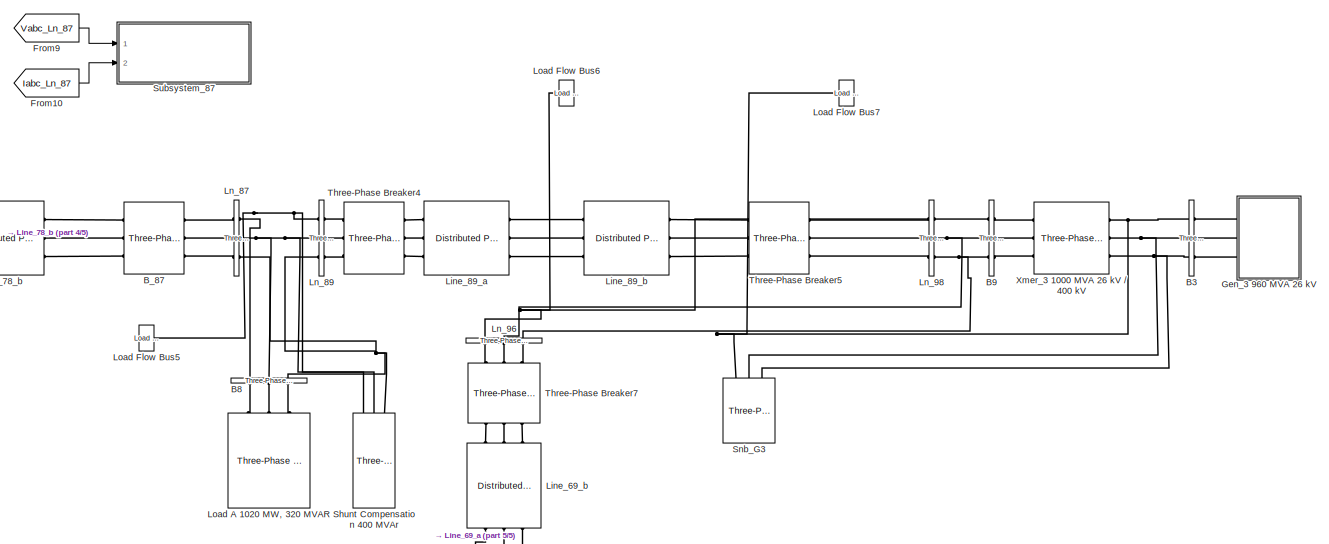
[diagram: root canvas - part 1/5, top right region]
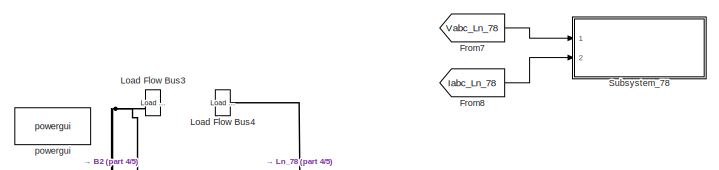
[diagram: root canvas - part 2/5, top center region]
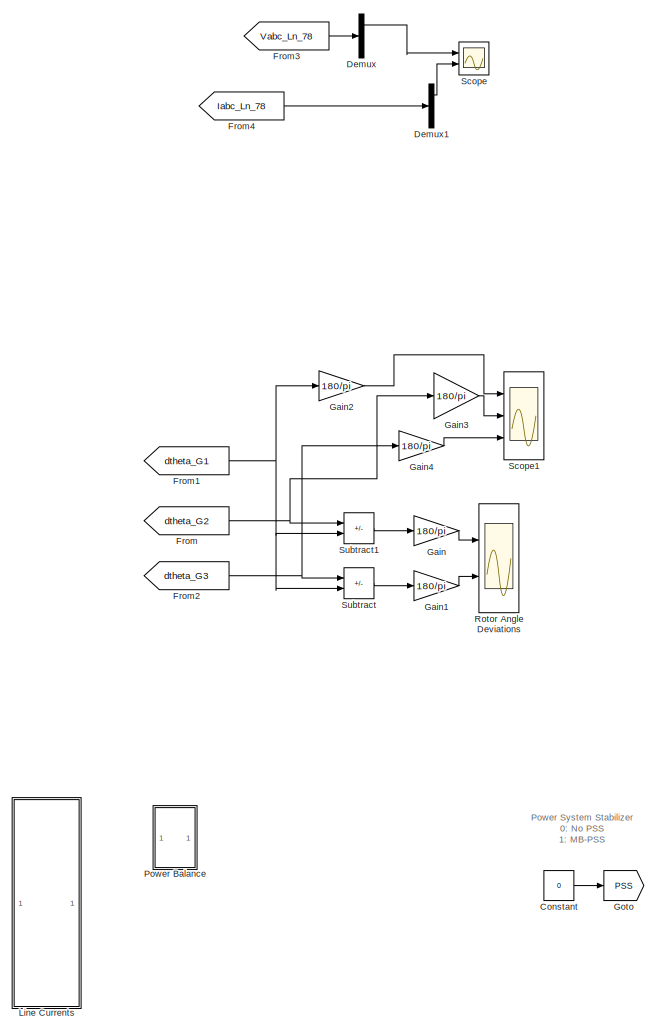
[diagram: root canvas - part 3/5, middle left region]
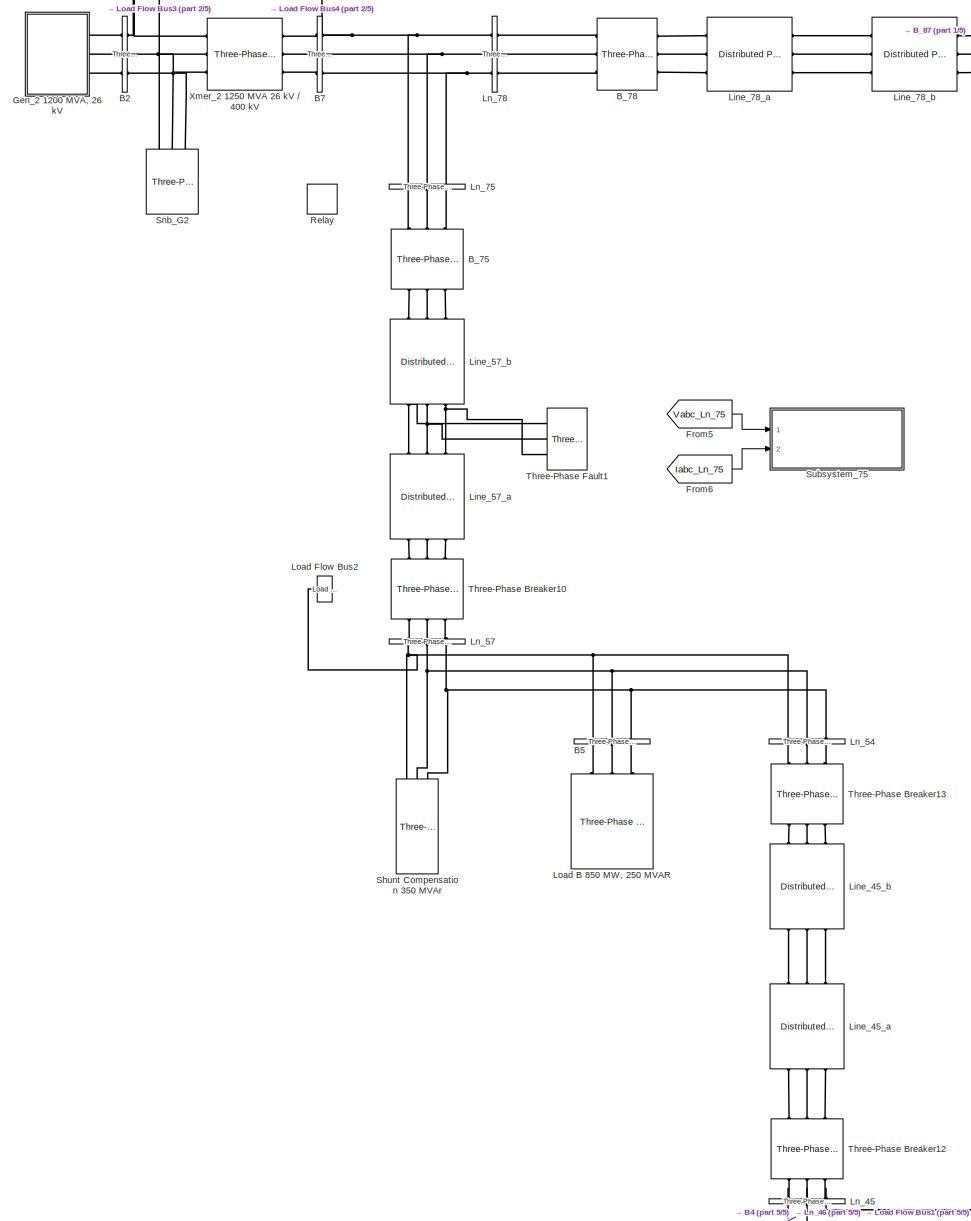
[diagram: root canvas - part 4/5, central region]
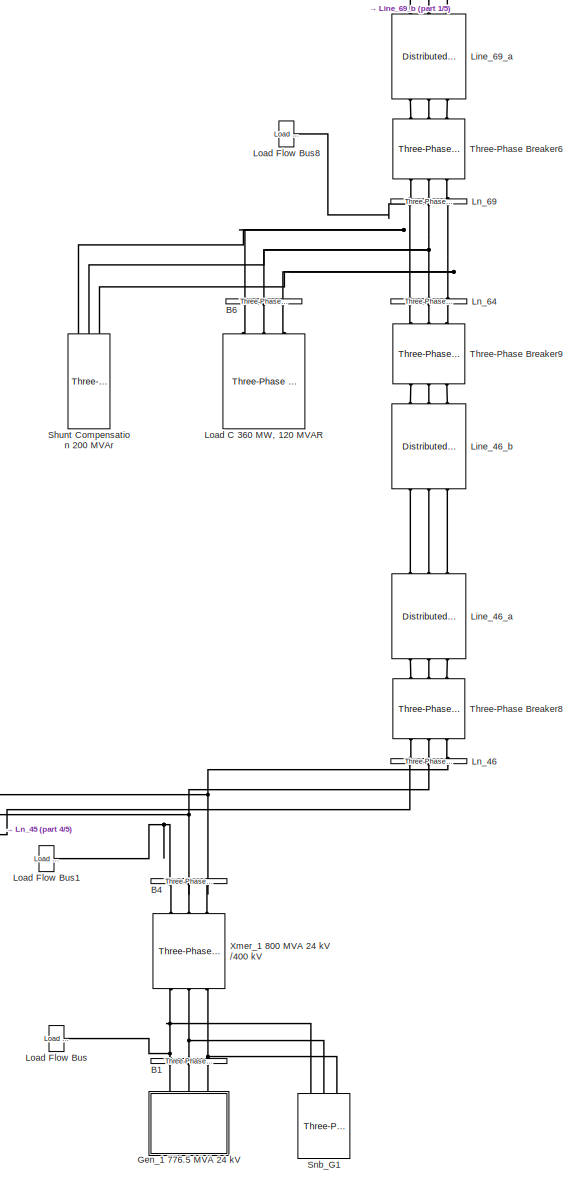
[diagram: root canvas - part 5/5, bottom right region]
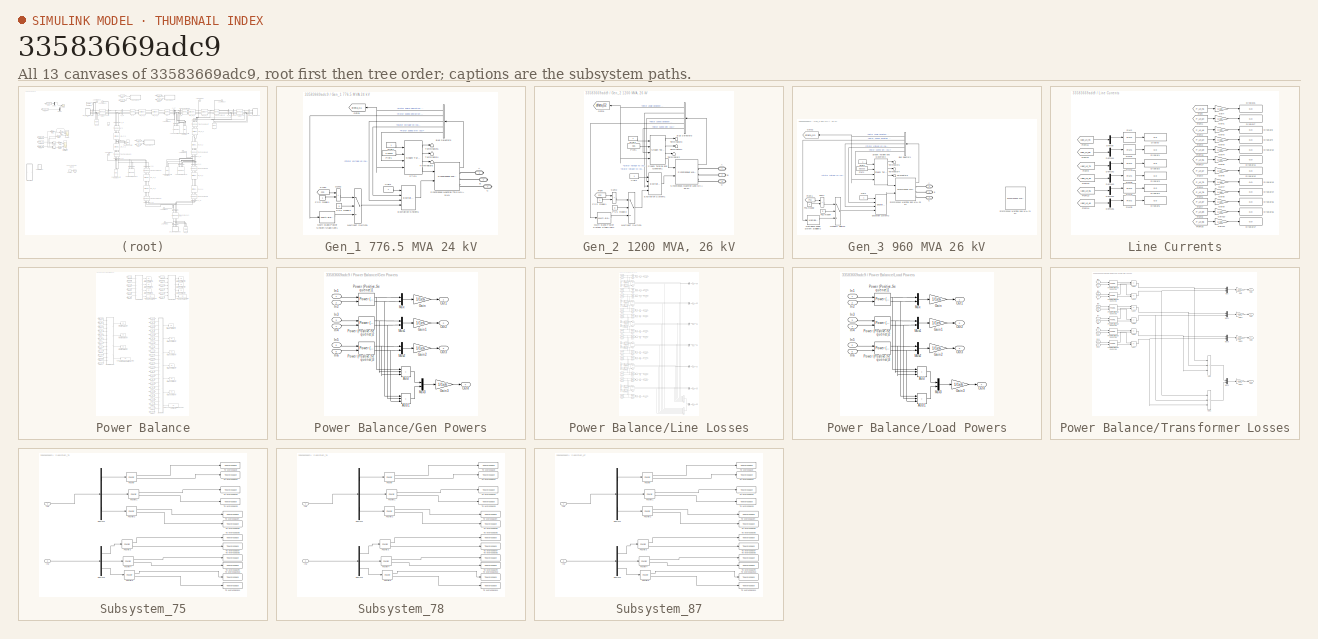
[diagram: thumbnail index - all 13 canvases of the model, root first then tree order]
MODEL slx_33583669adc9
KIND model
CONFIG AbsTol = auto
CONFIG EnableMultiTasking = off
CONFIG FixedStep = 5e-7
CONFIG MaxStep = auto
CONFIG MinStep = auto
CONFIG RelTol = 1e-3
CONFIG SampleTimeConstraint = Unconstrained
CONFIG SolverName = FixedStepDiscrete
CONFIG StartTime = 0.0
CONFIG StopTime = 1
BLOCK [Reference] B1  REF=spsThreePhaseVIMeasurementLib/Three-Phase
V-I Measurement
  NameLocation = right
  Ports = [0, 0, 0, 0, 0, 3, 3]
  SourceBlock = spsThreePhaseVIMeasurementLib/Three-Phase\nV-I Measurement
  SourceProductBaseCode = PS
  SourceType = Three-Phase VI Measurement
BLOCK [Reference] B2  REF=spsThreePhaseVIMeasurementLib/Three-Phase
V-I Measurement
  Ports = [0, 0, 0, 0, 0, 3, 3]
  SourceBlock = spsThreePhaseVIMeasurementLib/Three-Phase\nV-I Measurement
  SourceProductBaseCode = PS
  SourceType = Three-Phase VI Measurement
BLOCK [Reference] B3  REF=spsThreePhaseVIMeasurementLib/Three-Phase
V-I Measurement
  Ports = [0, 0, 0, 0, 0, 3, 3]
  SourceBlock = spsThreePhaseVIMeasurementLib/Three-Phase\nV-I Measurement
  SourceProductBaseCode = PS
  SourceType = Three-Phase VI Measurement
BLOCK [Reference] B4  REF=spsThreePhaseVIMeasurementLib/Three-Phase
V-I Measurement
  NameLocation = right
  Ports = [0, 0, 0, 0, 0, 3, 3]
  SourceBlock = spsThreePhaseVIMeasurementLib/Three-Phase\nV-I Measurement
  SourceProductBaseCode = PS
  SourceType = Three-Phase VI Measurement
BLOCK [Reference] B5  REF=spsThreePhaseVIMeasurementLib/Three-Phase
V-I Measurement
  NameLocation = left
  Ports = [0, 0, 0, 0, 0, 3, 3]
  SourceBlock = spsThreePhaseVIMeasurementLib/Three-Phase\nV-I Measurement
  SourceProductBaseCode = PS
  SourceType = Three-Phase VI Measurement
BLOCK [Reference] B6  REF=spsThreePhaseVIMeasurementLib/Three-Phase
V-I Measurement
  NameLocation = left
  Ports = [0, 0, 0, 0, 0, 3, 3]
  SourceBlock = spsThreePhaseVIMeasurementLib/Three-Phase\nV-I Measurement
  SourceProductBaseCode = PS
  SourceType = Three-Phase VI Measurement
BLOCK [Reference] B7  REF=spsThreePhaseVIMeasurementLib/Three-Phase
V-I Measurement
  Ports = [0, 0, 0, 0, 0, 3, 3]
  SourceBlock = spsThreePhaseVIMeasurementLib/Three-Phase\nV-I Measurement
  SourceProductBaseCode = PS
  SourceType = Three-Phase VI Measurement
BLOCK [Reference] B8  REF=spsThreePhaseVIMeasurementLib/Three-Phase
V-I Measurement
  NameLocation = left
  Ports = [0, 0, 0, 0, 0, 3, 3]
  SourceBlock = spsThreePhaseVIMeasurementLib/Three-Phase\nV-I Measurement
  SourceProductBaseCode = PS
  SourceType = Three-Phase VI Measurement
BLOCK [Reference] B9  REF=spsThreePhaseVIMeasurementLib/Three-Phase
V-I Measurement
  Ports = [0, 0, 0, 0, 0, 3, 3]
  SourceBlock = spsThreePhaseVIMeasurementLib/Three-Phase\nV-I Measurement
  SourceProductBaseCode = PS
  SourceType = Three-Phase VI Measurement
BLOCK [Reference] B_75  REF=spsThreePhaseBreakerLib/Three-Phase Breaker
  NameLocation = right
  Ports = [0, 0, 0, 0, 0, 3, 3]
  SourceBlock = spsThreePhaseBreakerLib/Three-Phase Breaker
  SourceProductBaseCode = PS
  SourceType = Three-Phase Breaker
BLOCK [Reference] B_78  REF=spsThreePhaseBreakerLib/Three-Phase Breaker
  Ports = [0, 0, 0, 0, 0, 3, 3]
  SourceBlock = spsThreePhaseBreakerLib/Three-Phase Breaker
  SourceProductBaseCode = PS
  SourceType = Three-Phase Breaker
BLOCK [Reference] B_87  REF=spsThreePhaseBreakerLib/Three-Phase Breaker
  Ports = [0, 0, 0, 0, 0, 3, 3]
  SourceBlock = spsThreePhaseBreakerLib/Three-Phase Breaker
  SourceProductBaseCode = PS
  SourceType = Three-Phase Breaker
BLOCK [Constant] Constant
  Value = 0
BLOCK [Demux] Demux
  Outputs = 3
  Ports = [1, 3]
BLOCK [Demux] Demux1
  Outputs = 3
  Ports = [1, 3]
BLOCK [From] From
  GotoTag = dtheta_G2
  TagVisibility = global
BLOCK [From] From1
  GotoTag = dtheta_G1
  TagVisibility = global
BLOCK [From] From10
  GotoTag = Iabc_Ln_87
  TagVisibility = global
BLOCK [From] From2
  GotoTag = dtheta_G3
  TagVisibility = global
BLOCK [From] From3
  GotoTag = Vabc_Ln_78
  TagVisibility = global
BLOCK [From] From4
  GotoTag = Iabc_Ln_78
  TagVisibility = global
BLOCK [From] From5
  GotoTag = Vabc_Ln_75
  TagVisibility = global
BLOCK [From] From6
  GotoTag = Iabc_Ln_75
  TagVisibility = global
BLOCK [From] From7
  GotoTag = Vabc_Ln_78
  TagVisibility = global
BLOCK [From] From8
  GotoTag = Iabc_Ln_78
  TagVisibility = global
BLOCK [From] From9
  GotoTag = Vabc_Ln_87
  TagVisibility = global
BLOCK [Gain] Gain
  Gain = 180/pi
BLOCK [Gain] Gain1
  Gain = 180/pi
BLOCK [Gain] Gain2
  Gain = 180/pi
BLOCK [Gain] Gain3
  Gain = 180/pi
BLOCK [Gain] Gain4
  Gain = 180/pi
BLOCK [SubSystem] Gen_1 776.5 MVA 24 kV
  NameLocation = left
  Ports = [0, 0, 0, 0, 0, 0, 3]
  RequestExecContextInheritance = off
BLOCK [PMIOPort] Gen_1 776.5 MVA 24 kV/A
  Side = Right
BLOCK [PMIOPort] Gen_1 776.5 MVA 24 kV/B
  Port = 2
  Side = Right
BLOCK [BusSelector] Gen_1 776.5 MVA 24 kV/Bus Selector3
  NameLocation = top
  OutputSignals = Mechanical.Rotor angle deviation  d_theta (rad),Mechanical.Rotor speed deviation  dw (pu),dq0 components.Stator voltage  vq (pu),dq0 components.Stator voltage  vd (pu),Mechanical.Rotor speed  wm  (pu)
  Ports = [1, 5]
BLOCK [PMIOPort] Gen_1 776.5 MVA 24 kV/C
  Port = 3
  Side = Right
BLOCK [Reference] Gen_1 776.5 MVA 24 kV/Excitation System1  REF=spsExcitationSystemLib/Excitation System
  Ports = [4, 1]
  SourceBlock = spsExcitationSystemLib/Excitation System
  SourceProductBaseCode = PS
  SourceType = Excitation System
BLOCK [From] Gen_1 776.5 MVA 24 kV/From
  GotoTag = PSS
  TagVisibility = global
BLOCK [Goto] Gen_1 776.5 MVA 24 kV/Goto1
  GotoTag = dtheta_G1
  TagVisibility = global
BLOCK [Reference] Gen_1 776.5 MVA 24 kV/Multi-Band Power System Stabilizer1  REF=spsMultiBandPowerSystemStabilizerLib/Multi-Band
Power System Stabilizer
  Ports = [1, 1]
  SourceBlock = spsMultiBandPowerSystemStabilizerLib/Multi-Band\nPower System Stabilizer
  SourceProductBaseCode = PS
  SourceType = Multi-Band Power System Stabilizer
BLOCK [MultiPortSwitch] Gen_1 776.5 MVA 24 kV/Multiport Switch1
  Inputs = 2
  Ports = [3, 1]
  SaturateOnIntegerOverflow = off
BLOCK [Constant] Gen_1 776.5 MVA 24 kV/PSS model1
BLOCK [Constant] Gen_1 776.5 MVA 24 kV/PSS model3
  Value = 0
BLOCK [Constant] Gen_1 776.5 MVA 24 kV/Pref1
  NameLocation = top
  Value = 0.56826
BLOCK [Reference] Gen_1 776.5 MVA 24 kV/STG1  REF=spsSteamTurbineandGovernorLib/Steam Turbine
and Governor
  Ports = [4, 4]
  SourceBlock = spsSteamTurbineandGovernorLib/Steam Turbine\nand Governor
  SourceProductBaseCode = PS
  SourceType = Steam Turbine and Governor
BLOCK [Sum] Gen_1 776.5 MVA 24 kV/Sum2
  IconShape = rectangular
  InputSameDT = on
  OutDataTypeStr = Inherit: Same as first input
  Ports = [2, 1]
  SaturateOnIntegerOverflow = on
BLOCK [Reference] Gen_1 776.5 MVA 24 kV/Synchronous Machine 776.5 MVA 24 kV  REF=spsSynchronousMachinepuStandardLib/Synchronous Machine
pu Standard
  AttributesFormatString = \n\n
  Ports = [2, 1, 0, 0, 0, 0, 3]
  SourceBlock = spsSynchronousMachinepuStandardLib/Synchronous Machine\npu Standard
  SourceProductBaseCode = PS
  SourceType = Synchronous Machine
BLOCK [Terminator] Gen_1 776.5 MVA 24 kV/Terminator4
  NameLocation = top
BLOCK [Terminator] Gen_1 776.5 MVA 24 kV/Terminator5
  NameLocation = top
BLOCK [Terminator] Gen_1 776.5 MVA 24 kV/Terminator6
  NameLocation = top
BLOCK [Constant] Gen_1 776.5 MVA 24 kV/Vref1
  NameLocation = top
BLOCK [Constant] Gen_1 776.5 MVA 24 kV/wref1
  NameLocation = top
BLOCK [SubSystem] Gen_2 1200 MVA, 26 kV
  Ports = [0, 0, 0, 0, 0, 0, 3]
  RequestExecContextInheritance = off
BLOCK [PMIOPort] Gen_2 1200 MVA, 26 kV/A
  Side = Right
BLOCK [PMIOPort] Gen_2 1200 MVA, 26 kV/B
  Port = 2
  Side = Right
BLOCK [BusSelector] Gen_2 1200 MVA, 26 kV/Bus Selector3
  NameLocation = top
  OutputSignals = Mechanical.Rotor angle deviation  d_theta (rad),dq0 components.Stator voltage  vq (pu),dq0 components.Stator voltage  vd (pu),Mechanical.Rotor speed deviation  dw (pu),Mechanical.Rotor speed  wm  (pu)
  Ports = [1, 5]
BLOCK [PMIOPort] Gen_2 1200 MVA, 26 kV/C
  Port = 3
  Side = Right
BLOCK [Reference] Gen_2 1200 MVA, 26 kV/Excitation System1  REF=spsExcitationSystemLib/Excitation System
  Ports = [4, 1]
  SourceBlock = spsExcitationSystemLib/Excitation System
  SourceProductBaseCode = PS
  SourceType = Excitation System
BLOCK [From] Gen_2 1200 MVA, 26 kV/From
  GotoTag = PSS
  TagVisibility = global
BLOCK [Goto] Gen_2 1200 MVA, 26 kV/Goto1
  GotoTag = dtheta_G2
  TagVisibility = global
BLOCK [Reference] Gen_2 1200 MVA, 26 kV/Multi-Band Power System Stabilizer1  REF=spsMultiBandPowerSystemStabilizerLib/Multi-Band
Power System Stabilizer
  Ports = [1, 1]
  SourceBlock = spsMultiBandPowerSystemStabilizerLib/Multi-Band\nPower System Stabilizer
  SourceProductBaseCode = PS
  SourceType = Multi-Band Power System Stabilizer
BLOCK [MultiPortSwitch] Gen_2 1200 MVA, 26 kV/Multiport Switch1
  Inputs = 2
  Ports = [3, 1]
  SaturateOnIntegerOverflow = off
BLOCK [Constant] Gen_2 1200 MVA, 26 kV/PSS model1
BLOCK [Constant] Gen_2 1200 MVA, 26 kV/PSS model3
  Value = 0
BLOCK [Constant] Gen_2 1200 MVA, 26 kV/Pref1
  NameLocation = top
  Value = 0.85
BLOCK [Reference] Gen_2 1200 MVA, 26 kV/Steam Turbine and Governor1  REF=spsSteamTurbineandGovernorLib/Steam Turbine
and Governor
  Ports = [4, 4]
  SourceBlock = spsSteamTurbineandGovernorLib/Steam Turbine\nand Governor
  SourceProductBaseCode = PS
  SourceType = Steam Turbine and Governor
BLOCK [Sum] Gen_2 1200 MVA, 26 kV/Sum2
  IconShape = rectangular
  InputSameDT = on
  OutDataTypeStr = Inherit: Same as first input
  Ports = [2, 1]
  SaturateOnIntegerOverflow = on
BLOCK [Reference] Gen_2 1200 MVA, 26 kV/Synchronous Machine 1200 MVA 26 kV  REF=spsSynchronousMachinepuStandardLib/Synchronous Machine
pu Standard
  AttributesFormatString = \n\n
  Ports = [2, 1, 0, 0, 0, 0, 3]
  SourceBlock = spsSynchronousMachinepuStandardLib/Synchronous Machine\npu Standard
  SourceProductBaseCode = PS
  SourceType = Synchronous Machine
BLOCK [Terminator] Gen_2 1200 MVA, 26 kV/Terminator1
  NameLocation = top
BLOCK [Terminator] Gen_2 1200 MVA, 26 kV/Terminator2
  NameLocation = top
BLOCK [Terminator] Gen_2 1200 MVA, 26 kV/Terminator3
  NameLocation = top
BLOCK [Constant] Gen_2 1200 MVA, 26 kV/Vref1
  NameLocation = top
BLOCK [Constant] Gen_2 1200 MVA, 26 kV/wref1
  NameLocation = top
BLOCK [SubSystem] Gen_3 960 MVA 26 kV
  Ports = [0, 0, 0, 0, 0, 0, 3]
  RequestExecContextInheritance = off
BLOCK [PMIOPort] Gen_3 960 MVA 26 kV/A
  Side = Right
BLOCK [PMIOPort] Gen_3 960 MVA 26 kV/B
  Port = 2
  Side = Right
BLOCK [BusSelector] Gen_3 960 MVA 26 kV/Bus Selector1
  NameLocation = top
  OutputSignals = Mechanical.Rotor angle deviation  d_theta (rad),Mechanical.Rotor speed deviation  dw (pu),dq0 components.Stator voltage  vq (pu),dq0 components.Stator voltage  vd (pu),Mechanical.Rotor speed  wm  (pu)
  Ports = [1, 5]
BLOCK [PMIOPort] Gen_3 960 MVA 26 kV/C
  Port = 3
  Side = Right
BLOCK [Reference] Gen_3 960 MVA 26 kV/Excitation System2  REF=spsExcitationSystemLib/Excitation System
  Ports = [4, 1]
  SourceBlock = spsExcitationSystemLib/Excitation System
  SourceProductBaseCode = PS
  SourceType = Excitation System
BLOCK [From] Gen_3 960 MVA 26 kV/From1
  GotoTag = PSS
  TagVisibility = global
BLOCK [Goto] Gen_3 960 MVA 26 kV/Goto2
  GotoTag = dtheta_G3
  TagVisibility = global
BLOCK [Reference] Gen_3 960 MVA 26 kV/Multi-Band Power System Stabilizer2  REF=spsMultiBandPowerSystemStabilizerLib/Multi-Band
Power System Stabilizer
  Ports = [1, 1]
  SourceBlock = spsMultiBandPowerSystemStabilizerLib/Multi-Band\nPower System Stabilizer
  SourceProductBaseCode = PS
  SourceType = Multi-Band Power System Stabilizer
BLOCK [MultiPortSwitch] Gen_3 960 MVA 26 kV/Multiport Switch2
  Inputs = 2
  Ports = [3, 1]
  SaturateOnIntegerOverflow = off
BLOCK [Constant] Gen_3 960 MVA 26 kV/PSS model2
BLOCK [Constant] Gen_3 960 MVA 26 kV/PSS model4
  Value = 0
BLOCK [Constant] Gen_3 960 MVA 26 kV/Pref2
  NameLocation = top
  Value = 0.83333
BLOCK [Reference] Gen_3 960 MVA 26 kV/Steam Turbine and Governor2  REF=spsSteamTurbineandGovernorLib/Steam Turbine
and Governor
  Ports = [4, 4]
  SourceBlock = spsSteamTurbineandGovernorLib/Steam Turbine\nand Governor
  SourceProductBaseCode = PS
  SourceType = Steam Turbine and Governor
BLOCK [Sum] Gen_3 960 MVA 26 kV/Sum1
  IconShape = rectangular
  InputSameDT = on
  OutDataTypeStr = Inherit: Same as first input
  Ports = [2, 1]
  SaturateOnIntegerOverflow = on
BLOCK [Reference] Gen_3 960 MVA 26 kV/Synchronous Machine 588 MVA 21 kV  REF=spsSynchronousMachinepuStandardLib/Synchronous Machine
pu Standard
  AttributesFormatString = \n\n
  Commented = on
  Ports = [2, 1, 0, 0, 0, 0, 3]
  SourceBlock = spsSynchronousMachinepuStandardLib/Synchronous Machine\npu Standard
  SourceProductBaseCode = PS
  SourceType = Synchronous Machine
BLOCK [Reference] Gen_3 960 MVA 26 kV/Synchronous Machine 960 MVA 26 kV  REF=spsSynchronousMachinepuStandardLib/Synchronous Machine
pu Standard
  AttributesFormatString = \n\n
  Ports = [2, 1, 0, 0, 0, 0, 3]
  SourceBlock = spsSynchronousMachinepuStandardLib/Synchronous Machine\npu Standard
  SourceProductBaseCode = PS
  SourceType = Synchronous Machine
BLOCK [Terminator] Gen_3 960 MVA 26 kV/Terminator4
  NameLocation = top
BLOCK [Terminator] Gen_3 960 MVA 26 kV/Terminator5
  NameLocation = top
BLOCK [Terminator] Gen_3 960 MVA 26 kV/Terminator6
  NameLocation = top
BLOCK [Constant] Gen_3 960 MVA 26 kV/Vref2
  NameLocation = top
BLOCK [Constant] Gen_3 960 MVA 26 kV/wref2
  NameLocation = top
BLOCK [Goto] Goto
  GotoTag = PSS
  TagVisibility = global
BLOCK [SubSystem] Line Currents
  Commented = on
  Ports = []
  RequestExecContextInheritance = off
BLOCK [Demux] Line Currents/Demux
  Outputs = 3
  Ports = [1, 3]
BLOCK [Demux] Line Currents/Demux1
  Outputs = 3
  Ports = [1, 3]
BLOCK [Demux] Line Currents/Demux2
  Outputs = 3
  Ports = [1, 3]
BLOCK [Demux] Line Currents/Demux3
  Outputs = 3
  Ports = [1, 3]
BLOCK [Demux] Line Currents/Demux4
  Outputs = 3
  Ports = [1, 3]
BLOCK [Demux] Line Currents/Demux5
  Outputs = 3
  Ports = [1, 3]
BLOCK [Display] Line Currents/Display
  Decimation = 1
  Ports = [1]
BLOCK [Display] Line Currents/Display1
  Decimation = 1
  Ports = [1]
BLOCK [Display] Line Currents/Display10
  Commented = on
  Decimation = 1
  Ports = [1]
BLOCK [Display] Line Currents/Display11
  Commented = on
  Decimation = 1
  Ports = [1]
BLOCK [Display] Line Currents/Display12
  Commented = on
  Decimation = 1
  Ports = [1]
BLOCK [Display] Line Currents/Display13
  Commented = on
  Decimation = 1
  Ports = [1]
BLOCK [Display] Line Currents/Display14
  Commented = on
  Decimation = 1
  Ports = [1]
BLOCK [Display] Line Currents/Display15
  Commented = on
  Decimation = 1
  Ports = [1]
BLOCK [Display] Line Currents/Display16
  Commented = on
  Decimation = 1
  Ports = [1]
BLOCK [Display] Line Currents/Display17
  Commented = on
  Decimation = 1
  Ports = [1]
BLOCK [Display] Line Currents/Display2
  Decimation = 1
  Ports = [1]
BLOCK [Display] Line Currents/Display3
  Decimation = 1
  Ports = [1]
BLOCK [Display] Line Currents/Display4
  Decimation = 1
  Ports = [1]
BLOCK [Display] Line Currents/Display5
  Decimation = 1
  Ports = [1]
BLOCK [Display] Line Currents/Display6
  Commented = on
  Decimation = 1
  Ports = [1]
BLOCK [Display] Line Currents/Display7
  Commented = on
  Decimation = 1
  Ports = [1]
BLOCK [Display] Line Currents/Display8
  Commented = on
  Decimation = 1
  Ports = [1]
BLOCK [Display] Line Currents/Display9
  Commented = on
  Decimation = 1
  Ports = [1]
BLOCK [From] Line Currents/From
  Commented = on
  GotoTag = P_Ln_45
  TagVisibility = global
BLOCK [From] Line Currents/From1
  Commented = on
  GotoTag = P_Ln_54
  TagVisibility = global
BLOCK [From] Line Currents/From10
  GotoTag = Iabc_Ln_45
  TagVisibility = global
BLOCK [From] Line Currents/From11
  GotoTag = Iabc_Ln_78
  TagVisibility = global
BLOCK [From] Line Currents/From12
  GotoTag = Iabc_Ln_98
  TagVisibility = global
BLOCK [From] Line Currents/From13
  GotoTag = Iabc_Ln_96
  TagVisibility = global
BLOCK [From] Line Currents/From14
  GotoTag = Iabc_Ln_46
  TagVisibility = global
BLOCK [From] Line Currents/From15
  Commented = on
  GotoTag = P_Ln_98
  TagVisibility = global
BLOCK [From] Line Currents/From16
  Commented = on
  GotoTag = P_Ln_69
  TagVisibility = global
BLOCK [From] Line Currents/From17
  Commented = on
  GotoTag = P_Ln_96
  TagVisibility = global
BLOCK [From] Line Currents/From2
  Commented = on
  GotoTag = P_Ln_46
  TagVisibility = global
BLOCK [From] Line Currents/From3
  Commented = on
  GotoTag = P_Ln_64
  TagVisibility = global
BLOCK [From] Line Currents/From4
  Commented = on
  GotoTag = P_Ln_57
  TagVisibility = global
BLOCK [From] Line Currents/From5
  Commented = on
  GotoTag = P_Ln_75
  TagVisibility = global
BLOCK [From] Line Currents/From6
  Commented = on
  GotoTag = P_Ln_78
  TagVisibility = global
BLOCK [From] Line Currents/From7
  Commented = on
  GotoTag = P_Ln_87
  TagVisibility = global
BLOCK [From] Line Currents/From8
  Commented = on
  GotoTag = P_Ln_89
  TagVisibility = global
BLOCK [From] Line Currents/From9
  GotoTag = Iabc_Ln_75
  TagVisibility = global
BLOCK [Gain] Line Currents/Gain
  Commented = on
  Gain = 1/1e6
BLOCK [Gain] Line Currents/Gain1
  Commented = on
  Gain = 1/1e6
BLOCK [Gain] Line Currents/Gain10
  Commented = on
  Gain = 1/1e6
BLOCK [Gain] Line Currents/Gain11
  Commented = on
  Gain = 1/1e6
BLOCK [Gain] Line Currents/Gain2
  Commented = on
  Gain = 1/1e6
BLOCK [Gain] Line Currents/Gain3
  Commented = on
  Gain = 1/1e6
BLOCK [Gain] Line Currents/Gain4
  Commented = on
  Gain = 1/1e6
BLOCK [Gain] Line Currents/Gain5
  Commented = on
  Gain = 1/1e6
BLOCK [Gain] Line Currents/Gain6
  Commented = on
  Gain = 1/1e6
BLOCK [Gain] Line Currents/Gain7
  Commented = on
  Gain = 1/1e6
BLOCK [Gain] Line Currents/Gain8
  Commented = on
  Gain = 1/1e6
BLOCK [Gain] Line Currents/Gain9
  Commented = on
  Gain = 1/1e6
BLOCK [Reference] Line Currents/RMS  REF=spsRMSLib/RMS
  Ports = [1, 1]
  SourceBlock = spsRMSLib/RMS
  SourceProductBaseCode = PS
  SourceType = RMS
BLOCK [Reference] Line Currents/RMS1  REF=spsRMSLib/RMS
  Ports = [1, 1]
  SourceBlock = spsRMSLib/RMS
  SourceProductBaseCode = PS
  SourceType = RMS
BLOCK [Reference] Line Currents/RMS2  REF=spsRMSLib/RMS
  Ports = [1, 1]
  SourceBlock = spsRMSLib/RMS
  SourceProductBaseCode = PS
  SourceType = RMS
BLOCK [Reference] Line Currents/RMS3  REF=spsRMSLib/RMS
  Ports = [1, 1]
  SourceBlock = spsRMSLib/RMS
  SourceProductBaseCode = PS
  SourceType = RMS
BLOCK [Reference] Line Currents/RMS4  REF=spsRMSLib/RMS
  Ports = [1, 1]
  SourceBlock = spsRMSLib/RMS
  SourceProductBaseCode = PS
  SourceType = RMS
BLOCK [Reference] Line Currents/RMS5  REF=spsRMSLib/RMS
  Ports = [1, 1]
  SourceBlock = spsRMSLib/RMS
  SourceProductBaseCode = PS
  SourceType = RMS
BLOCK [Reference] Line_45_a  REF=spsDistributedParametersLineLib/Distributed Parameters Line
  NameLocation = right
  Ports = [0, 0, 0, 0, 0, 3, 3]
  SourceBlock = spsDistributedParametersLineLib/Distributed Parameters Line
  SourceProductBaseCode = PS
  SourceType = Distributed Parameters Line
BLOCK [Reference] Line_45_b  REF=spsDistributedParametersLineLib/Distributed Parameters Line
  NameLocation = right
  Ports = [0, 0, 0, 0, 0, 3, 3]
  SourceBlock = spsDistributedParametersLineLib/Distributed Parameters Line
  SourceProductBaseCode = PS
  SourceType = Distributed Parameters Line
BLOCK [Reference] Line_46_a  REF=spsDistributedParametersLineLib/Distributed Parameters Line
  NameLocation = right
  Ports = [0, 0, 0, 0, 0, 3, 3]
  SourceBlock = spsDistributedParametersLineLib/Distributed Parameters Line
  SourceProductBaseCode = PS
  SourceType = Distributed Parameters Line
BLOCK [Reference] Line_46_b  REF=spsDistributedParametersLineLib/Distributed Parameters Line
  NameLocation = right
  Ports = [0, 0, 0, 0, 0, 3, 3]
  SourceBlock = spsDistributedParametersLineLib/Distributed Parameters Line
  SourceProductBaseCode = PS
  SourceType = Distributed Parameters Line
BLOCK [Reference] Line_57_a  REF=spsDistributedParametersLineLib/Distributed Parameters Line
  NameLocation = right
  Ports = [0, 0, 0, 0, 0, 3, 3]
  SourceBlock = spsDistributedParametersLineLib/Distributed Parameters Line
  SourceProductBaseCode = PS
  SourceType = Distributed Parameters Line
BLOCK [Reference] Line_57_b  REF=spsDistributedParametersLineLib/Distributed Parameters Line
  NameLocation = right
  Ports = [0, 0, 0, 0, 0, 3, 3]
  SourceBlock = spsDistributedParametersLineLib/Distributed Parameters Line
  SourceProductBaseCode = PS
  SourceType = Distributed Parameters Line
BLOCK [Reference] Line_69_a  REF=spsDistributedParametersLineLib/Distributed Parameters Line
  NameLocation = right
  Ports = [0, 0, 0, 0, 0, 3, 3]
  SourceBlock = spsDistributedParametersLineLib/Distributed Parameters Line
  SourceProductBaseCode = PS
  SourceType = Distributed Parameters Line
BLOCK [Reference] Line_69_b  REF=spsDistributedParametersLineLib/Distributed Parameters Line
  NameLocation = right
  Ports = [0, 0, 0, 0, 0, 3, 3]
  SourceBlock = spsDistributedParametersLineLib/Distributed Parameters Line
  SourceProductBaseCode = PS
  SourceType = Distributed Parameters Line
BLOCK [Reference] Line_78_a  REF=spsDistributedParametersLineLib/Distributed Parameters Line
  Ports = [0, 0, 0, 0, 0, 3, 3]
  SourceBlock = spsDistributedParametersLineLib/Distributed Parameters Line
  SourceProductBaseCode = PS
  SourceType = Distributed Parameters Line
BLOCK [Reference] Line_78_b  REF=spsDistributedParametersLineLib/Distributed Parameters Line
  Ports = [0, 0, 0, 0, 0, 3, 3]
  SourceBlock = spsDistributedParametersLineLib/Distributed Parameters Line
  SourceProductBaseCode = PS
  SourceType = Distributed Parameters Line
BLOCK [Reference] Line_89_a  REF=spsDistributedParametersLineLib/Distributed Parameters Line
  Ports = [0, 0, 0, 0, 0, 3, 3]
  SourceBlock = spsDistributedParametersLineLib/Distributed Parameters Line
  SourceProductBaseCode = PS
  SourceType = Distributed Parameters Line
BLOCK [Reference] Line_89_b  REF=spsDistributedParametersLineLib/Distributed Parameters Line
  Ports = [0, 0, 0, 0, 0, 3, 3]
  SourceBlock = spsDistributedParametersLineLib/Distributed Parameters Line
  SourceProductBaseCode = PS
  SourceType = Distributed Parameters Line
BLOCK [Reference] Ln_45  REF=spsThreePhaseVIMeasurementLib/Three-Phase
V-I Measurement
  NameLocation = right
  Ports = [0, 0, 0, 0, 0, 3, 3]
  SourceBlock = spsThreePhaseVIMeasurementLib/Three-Phase\nV-I Measurement
  SourceProductBaseCode = PS
  SourceType = Three-Phase VI Measurement
BLOCK [Reference] Ln_46  REF=spsThreePhaseVIMeasurementLib/Three-Phase
V-I Measurement
  NameLocation = right
  Ports = [0, 0, 0, 0, 0, 3, 3]
  SourceBlock = spsThreePhaseVIMeasurementLib/Three-Phase\nV-I Measurement
  SourceProductBaseCode = PS
  SourceType = Three-Phase VI Measurement
BLOCK [Reference] Ln_54  REF=spsThreePhaseVIMeasurementLib/Three-Phase
V-I Measurement
  NameLocation = right
  Ports = [0, 0, 0, 0, 0, 3, 3]
  SourceBlock = spsThreePhaseVIMeasurementLib/Three-Phase\nV-I Measurement
  SourceProductBaseCode = PS
  SourceType = Three-Phase VI Measurement
BLOCK [Reference] Ln_57  REF=spsThreePhaseVIMeasurementLib/Three-Phase
V-I Measurement
  NameLocation = right
  Ports = [0, 0, 0, 0, 0, 3, 3]
  SourceBlock = spsThreePhaseVIMeasurementLib/Three-Phase\nV-I Measurement
  SourceProductBaseCode = PS
  SourceType = Three-Phase VI Measurement
BLOCK [Reference] Ln_64  REF=spsThreePhaseVIMeasurementLib/Three-Phase
V-I Measurement
  NameLocation = right
  Ports = [0, 0, 0, 0, 0, 3, 3]
  SourceBlock = spsThreePhaseVIMeasurementLib/Three-Phase\nV-I Measurement
  SourceProductBaseCode = PS
  SourceType = Three-Phase VI Measurement
BLOCK [Reference] Ln_69  REF=spsThreePhaseVIMeasurementLib/Three-Phase
V-I Measurement
  NameLocation = right
  Ports = [0, 0, 0, 0, 0, 3, 3]
  SourceBlock = spsThreePhaseVIMeasurementLib/Three-Phase\nV-I Measurement
  SourceProductBaseCode = PS
  SourceType = Three-Phase VI Measurement
BLOCK [Reference] Ln_75  REF=spsThreePhaseVIMeasurementLib/Three-Phase
V-I Measurement
  NameLocation = right
  Ports = [0, 0, 0, 0, 0, 3, 3]
  SourceBlock = spsThreePhaseVIMeasurementLib/Three-Phase\nV-I Measurement
  SourceProductBaseCode = PS
  SourceType = Three-Phase VI Measurement
BLOCK [Reference] Ln_78  REF=spsThreePhaseVIMeasurementLib/Three-Phase
V-I Measurement
  Ports = [0, 0, 0, 0, 0, 3, 3]
  SourceBlock = spsThreePhaseVIMeasurementLib/Three-Phase\nV-I Measurement
  SourceProductBaseCode = PS
  SourceType = Three-Phase VI Measurement
BLOCK [Reference] Ln_87  REF=spsThreePhaseVIMeasurementLib/Three-Phase
V-I Measurement
  Ports = [0, 0, 0, 0, 0, 3, 3]
  SourceBlock = spsThreePhaseVIMeasurementLib/Three-Phase\nV-I Measurement
  SourceProductBaseCode = PS
  SourceType = Three-Phase VI Measurement
BLOCK [Reference] Ln_89  REF=spsThreePhaseVIMeasurementLib/Three-Phase
V-I Measurement
  Ports = [0, 0, 0, 0, 0, 3, 3]
  SourceBlock = spsThreePhaseVIMeasurementLib/Three-Phase\nV-I Measurement
  SourceProductBaseCode = PS
  SourceType = Three-Phase VI Measurement
BLOCK [Reference] Ln_96  REF=spsThreePhaseVIMeasurementLib/Three-Phase
V-I Measurement
  NameLocation = right
  Ports = [0, 0, 0, 0, 0, 3, 3]
  SourceBlock = spsThreePhaseVIMeasurementLib/Three-Phase\nV-I Measurement
  SourceProductBaseCode = PS
  SourceType = Three-Phase VI Measurement
BLOCK [Reference] Ln_98  REF=spsThreePhaseVIMeasurementLib/Three-Phase
V-I Measurement
  Ports = [0, 0, 0, 0, 0, 3, 3]
  SourceBlock = spsThreePhaseVIMeasurementLib/Three-Phase\nV-I Measurement
  SourceProductBaseCode = PS
  SourceType = Three-Phase VI Measurement
BLOCK [Reference] Load A 1020 MW, 320 MVAR  REF=spsThreePhaseParallelRLCLoadLib/Three-Phase
Parallel RLC Load
  AttributesFormatString = \n
  NameLocation = right
  Ports = [0, 0, 0, 0, 0, 3]
  SourceBlock = spsThreePhaseParallelRLCLoadLib/Three-Phase\nParallel RLC Load
  SourceProductBaseCode = PS
  SourceType = Three-Phase Parallel RLC Load
BLOCK [Reference] Load B 850 MW, 250 MVAR  REF=spsThreePhaseParallelRLCLoadLib/Three-Phase
Parallel RLC Load
  AttributesFormatString = \n
  NameLocation = right
  Ports = [0, 0, 0, 0, 0, 3]
  SourceBlock = spsThreePhaseParallelRLCLoadLib/Three-Phase\nParallel RLC Load
  SourceProductBaseCode = PS
  SourceType = Three-Phase Parallel RLC Load
BLOCK [Reference] Load C 360 MW, 120 MVAR  REF=spsThreePhaseParallelRLCLoadLib/Three-Phase
Parallel RLC Load
  AttributesFormatString = \n
  NameLocation = right
  Ports = [0, 0, 0, 0, 0, 3]
  SourceBlock = spsThreePhaseParallelRLCLoadLib/Three-Phase\nParallel RLC Load
  SourceProductBaseCode = PS
  SourceType = Three-Phase Parallel RLC Load
BLOCK [Reference] Load Flow Bus  REF=spsLoadFlowBusLib/Load Flow Bus
  AttributesFormatString = %<ID>\n%<Vbase>V\n%<VLF>pu\n%<angleLF>deg.
  Ports = [0, 0, 0, 0, 0, 1]
  SourceBlock = spsLoadFlowBusLib/Load Flow Bus
  SourceProductBaseCode = PS
  SourceType = Load Flow Bus
BLOCK [Reference] Load Flow Bus1  REF=spsLoadFlowBusLib/Load Flow Bus
  AttributesFormatString = %<ID>\n%<Vbase>V\n%<VLF>pu\n%<angleLF>deg.
  Ports = [0, 0, 0, 0, 0, 1]
  SourceBlock = spsLoadFlowBusLib/Load Flow Bus
  SourceProductBaseCode = PS
  SourceType = Load Flow Bus
BLOCK [Reference] Load Flow Bus2  REF=spsLoadFlowBusLib/Load Flow Bus
  AttributesFormatString = %<ID>\n%<Vbase>V\n%<VLF>pu\n%<angleLF>deg.
  Ports = [0, 0, 0, 0, 0, 1]
  SourceBlock = spsLoadFlowBusLib/Load Flow Bus
  SourceProductBaseCode = PS
  SourceType = Load Flow Bus
BLOCK [Reference] Load Flow Bus3  REF=spsLoadFlowBusLib/Load Flow Bus
  AttributesFormatString = %<ID>\n%<Vbase>V\n%<VLF>pu\n%<angleLF>deg.
  Ports = [0, 0, 0, 0, 0, 1]
  SourceBlock = spsLoadFlowBusLib/Load Flow Bus
  SourceProductBaseCode = PS
  SourceType = Load Flow Bus
BLOCK [Reference] Load Flow Bus4  REF=spsLoadFlowBusLib/Load Flow Bus
  AttributesFormatString = %<ID>\n%<Vbase>V\n%<VLF>pu\n%<angleLF>deg.
  Ports = [0, 0, 0, 0, 0, 1]
  SourceBlock = spsLoadFlowBusLib/Load Flow Bus
  SourceProductBaseCode = PS
  SourceType = Load Flow Bus
BLOCK [Reference] Load Flow Bus5  REF=spsLoadFlowBusLib/Load Flow Bus
  AttributesFormatString = %<ID>\n%<Vbase>V\n%<VLF>pu\n%<angleLF>deg.
  Ports = [0, 0, 0, 0, 0, 1]
  SourceBlock = spsLoadFlowBusLib/Load Flow Bus
  SourceProductBaseCode = PS
  SourceType = Load Flow Bus
BLOCK [Reference] Load Flow Bus6  REF=spsLoadFlowBusLib/Load Flow Bus
  AttributesFormatString = %<ID>\n%<Vbase>V\n%<VLF>pu\n%<angleLF>deg.
  Ports = [0, 0, 0, 0, 0, 1]
  SourceBlock = spsLoadFlowBusLib/Load Flow Bus
  SourceProductBaseCode = PS
  SourceType = Load Flow Bus
BLOCK [Reference] Load Flow Bus7  REF=spsLoadFlowBusLib/Load Flow Bus
  AttributesFormatString = %<ID>\n%<Vbase>V\n%<VLF>pu\n%<angleLF>deg.
  Ports = [0, 0, 0, 0, 0, 1]
  SourceBlock = spsLoadFlowBusLib/Load Flow Bus
  SourceProductBaseCode = PS
  SourceType = Load Flow Bus
BLOCK [Reference] Load Flow Bus8  REF=spsLoadFlowBusLib/Load Flow Bus
  AttributesFormatString = %<ID>\n%<Vbase>V\n%<VLF>pu\n%<angleLF>deg.
  Ports = [0, 0, 0, 0, 0, 1]
  SourceBlock = spsLoadFlowBusLib/Load Flow Bus
  SourceProductBaseCode = PS
  SourceType = Load Flow Bus
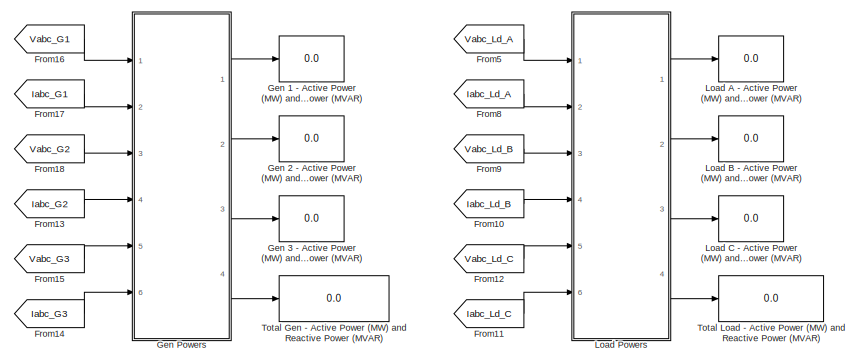
[diagram: Power Balance - part 1/3, top center region]
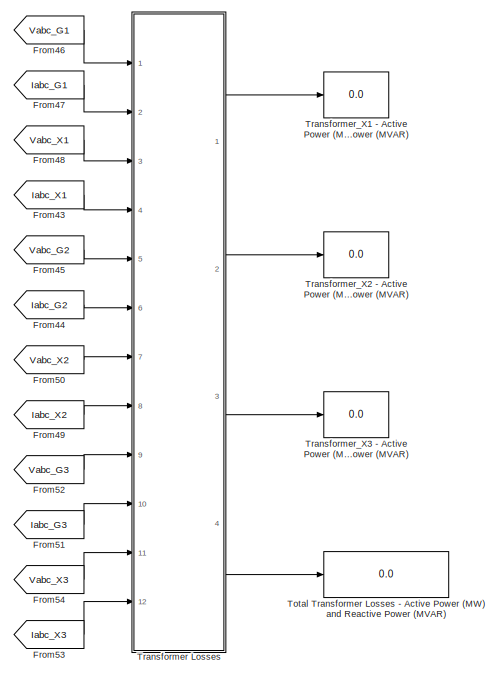
[diagram: Power Balance - part 2/3, middle left region]
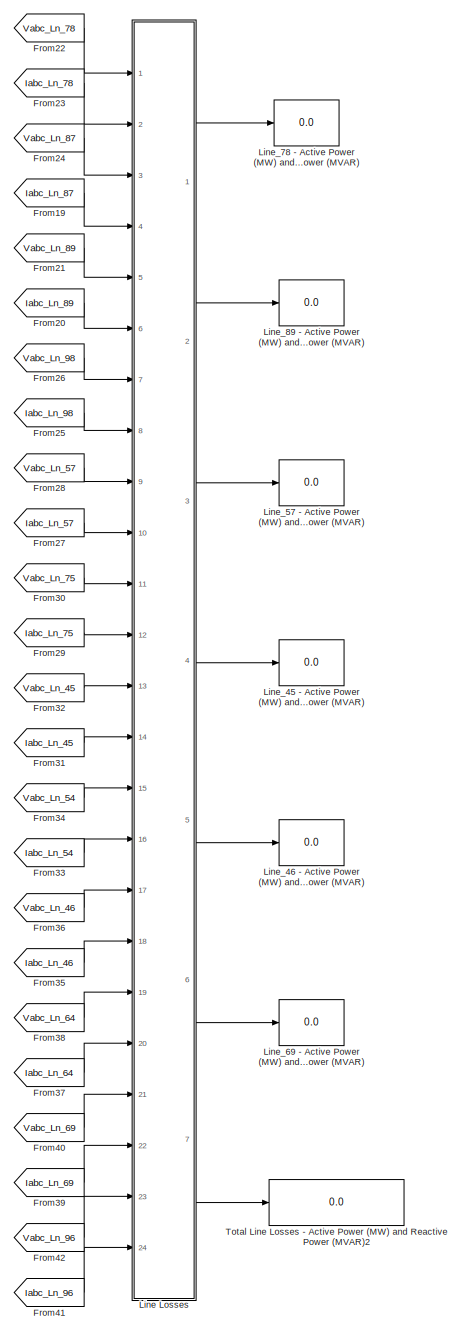
[diagram: Power Balance - part 3/3, middle right region]
BLOCK [SubSystem] Power Balance
  Commented = on
  Ports = []
  RequestExecContextInheritance = off
BLOCK [From] Power Balance/From10
  Commented = on
  GotoTag = Iabc_Ld_B
  TagVisibility = global
BLOCK [From] Power Balance/From11
  Commented = on
  GotoTag = Iabc_Ld_C
  TagVisibility = global
BLOCK [From] Power Balance/From12
  Commented = on
  GotoTag = Vabc_Ld_C
  TagVisibility = global
BLOCK [From] Power Balance/From13
  Commented = on
  GotoTag = Iabc_G2
  TagVisibility = global
BLOCK [From] Power Balance/From14
  Commented = on
  GotoTag = Iabc_G3
  TagVisibility = global
BLOCK [From] Power Balance/From15
  Commented = on
  GotoTag = Vabc_G3
  TagVisibility = global
BLOCK [From] Power Balance/From16
  Commented = on
  GotoTag = Vabc_G1
  TagVisibility = global
BLOCK [From] Power Balance/From17
  Commented = on
  GotoTag = Iabc_G1
  TagVisibility = global
BLOCK [From] Power Balance/From18
  Commented = on
  GotoTag = Vabc_G2
  TagVisibility = global
BLOCK [From] Power Balance/From19
  GotoTag = Iabc_Ln_87
  TagVisibility = global
BLOCK [From] Power Balance/From20
  GotoTag = Iabc_Ln_89
  TagVisibility = global
BLOCK [From] Power Balance/From21
  GotoTag = Vabc_Ln_89
  TagVisibility = global
BLOCK [From] Power Balance/From22
  GotoTag = Vabc_Ln_78
  TagVisibility = global
BLOCK [From] Power Balance/From23
  GotoTag = Iabc_Ln_78
  TagVisibility = global
BLOCK [From] Power Balance/From24
  GotoTag = Vabc_Ln_87
  TagVisibility = global
BLOCK [From] Power Balance/From25
  GotoTag = Iabc_Ln_98
  TagVisibility = global
BLOCK [From] Power Balance/From26
  GotoTag = Vabc_Ln_98
  TagVisibility = global
BLOCK [From] Power Balance/From27
  GotoTag = Iabc_Ln_57
  TagVisibility = global
BLOCK [From] Power Balance/From28
  GotoTag = Vabc_Ln_57
  TagVisibility = global
BLOCK [From] Power Balance/From29
  GotoTag = Iabc_Ln_75
  TagVisibility = global
BLOCK [From] Power Balance/From30
  GotoTag = Vabc_Ln_75
  TagVisibility = global
BLOCK [From] Power Balance/From31
  GotoTag = Iabc_Ln_45
  TagVisibility = global
BLOCK [From] Power Balance/From32
  GotoTag = Vabc_Ln_45
  TagVisibility = global
BLOCK [From] Power Balance/From33
  GotoTag = Iabc_Ln_54
  TagVisibility = global
BLOCK [From] Power Balance/From34
  GotoTag = Vabc_Ln_54
  TagVisibility = global
BLOCK [From] Power Balance/From35
  GotoTag = Iabc_Ln_46
  TagVisibility = global
BLOCK [From] Power Balance/From36
  GotoTag = Vabc_Ln_46
  TagVisibility = global
BLOCK [From] Power Balance/From37
  GotoTag = Iabc_Ln_64
  TagVisibility = global
BLOCK [From] Power Balance/From38
  GotoTag = Vabc_Ln_64
  TagVisibility = global
BLOCK [From] Power Balance/From39
  GotoTag = Iabc_Ln_69
  TagVisibility = global
BLOCK [From] Power Balance/From40
  GotoTag = Vabc_Ln_69
  TagVisibility = global
BLOCK [From] Power Balance/From41
  GotoTag = Iabc_Ln_96
  TagVisibility = global
BLOCK [From] Power Balance/From42
  GotoTag = Vabc_Ln_96
  TagVisibility = global
BLOCK [From] Power Balance/From43
  Commented = on
  GotoTag = Iabc_X1
  TagVisibility = global
BLOCK [From] Power Balance/From44
  Commented = on
  GotoTag = Iabc_G2
  TagVisibility = global
BLOCK [From] Power Balance/From45
  Commented = on
  GotoTag = Vabc_G2
  TagVisibility = global
BLOCK [From] Power Balance/From46
  Commented = on
  GotoTag = Vabc_G1
  TagVisibility = global
BLOCK [From] Power Balance/From47
  Commented = on
  GotoTag = Iabc_G1
  TagVisibility = global
BLOCK [From] Power Balance/From48
  Commented = on
  GotoTag = Vabc_X1
  TagVisibility = global
BLOCK [From] Power Balance/From49
  Commented = on
  GotoTag = Iabc_X2
  TagVisibility = global
BLOCK [From] Power Balance/From5
  Commented = on
  GotoTag = Vabc_Ld_A
  TagVisibility = global
BLOCK [From] Power Balance/From50
  Commented = on
  GotoTag = Vabc_X2
  TagVisibility = global
BLOCK [From] Power Balance/From51
  Commented = on
  GotoTag = Iabc_G3
  TagVisibility = global
BLOCK [From] Power Balance/From52
  Commented = on
  GotoTag = Vabc_G3
  TagVisibility = global
BLOCK [From] Power Balance/From53
  Commented = on
  GotoTag = Iabc_X3
  TagVisibility = global
BLOCK [From] Power Balance/From54
  Commented = on
  GotoTag = Vabc_X3
  TagVisibility = global
BLOCK [From] Power Balance/From8
  Commented = on
  GotoTag = Iabc_Ld_A
  TagVisibility = global
BLOCK [From] Power Balance/From9
  Commented = on
  GotoTag = Vabc_Ld_B
  TagVisibility = global
BLOCK [Display] Power Balance/Gen 1 - Active Power (MW) and Reactive Power (MVAR)
  Commented = on
  Decimation = 1
  Ports = [1]
BLOCK [Display] Power Balance/Gen 2 - Active Power (MW) and Reactive Power (MVAR)
  Commented = on
  Decimation = 1
  Ports = [1]
BLOCK [Display] Power Balance/Gen 3 - Active Power (MW) and Reactive Power (MVAR)
  Commented = on
  Decimation = 1
  Ports = [1]
BLOCK [SubSystem] Power Balance/Gen Powers
  Commented = on
  Ports = [6, 4]
  RequestExecContextInheritance = off
BLOCK [Sum] Power Balance/Gen Powers/Add
  IconShape = rectangular
  Inputs = +++
  Ports = [3, 1]
BLOCK [Sum] Power Balance/Gen Powers/Add1
  IconShape = rectangular
  Inputs = +++
  Ports = [3, 1]
BLOCK [Gain] Power Balance/Gen Powers/Gain
  Gain = 1/1e6
BLOCK [Gain] Power Balance/Gen Powers/Gain1
  Gain = 1/1e6
BLOCK [Gain] Power Balance/Gen Powers/Gain2
  Gain = 1/1e6
BLOCK [Gain] Power Balance/Gen Powers/Gain3
  Gain = 1/1e6
BLOCK [Inport] Power Balance/Gen Powers/In1
BLOCK [Inport] Power Balance/Gen Powers/In2
  Port = 2
BLOCK [Inport] Power Balance/Gen Powers/In3
  Port = 3
BLOCK [Inport] Power Balance/Gen Powers/In4
  Port = 4
BLOCK [Inport] Power Balance/Gen Powers/In5
  Port = 5
BLOCK [Inport] Power Balance/Gen Powers/In6
  Port = 6
BLOCK [Mux] Power Balance/Gen Powers/Mux
  DisplayOption = bar
  Inputs = 2
  Ports = [2, 1]
BLOCK [Mux] Power Balance/Gen Powers/Mux1
  DisplayOption = bar
  Inputs = 2
  Ports = [2, 1]
BLOCK [Mux] Power Balance/Gen Powers/Mux2
  DisplayOption = bar
  Inputs = 2
  Ports = [2, 1]
BLOCK [Mux] Power Balance/Gen Powers/Mux3
  DisplayOption = bar
  Inputs = 2
  Ports = [2, 1]
BLOCK [Outport] Power Balance/Gen Powers/Out1
  VectorParamsAs1DForOutWhenUnconnected = off
BLOCK [Outport] Power Balance/Gen Powers/Out2
  Port = 2
  VectorParamsAs1DForOutWhenUnconnected = off
BLOCK [Outport] Power Balance/Gen Powers/Out3
  Port = 3
  VectorParamsAs1DForOutWhenUnconnected = off
BLOCK [Outport] Power Balance/Gen Powers/Out4
  Port = 4
  VectorParamsAs1DForOutWhenUnconnected = off
BLOCK [Reference] Power Balance/Gen Powers/Power (Positive-Sequence)1  REF=spsPowerPositiveSequenceLib/Power
(Positive-Sequence)
  Ports = [2, 2]
  SourceBlock = spsPowerPositiveSequenceLib/Power\n(Positive-Sequence)
  SourceProductBaseCode = PS
  SourceType = Power (Positive-Sequence)
BLOCK [Reference] Power Balance/Gen Powers/Power (Positive-Sequence)2  REF=spsPowerPositiveSequenceLib/Power
(Positive-Sequence)
  Ports = [2, 2]
  SourceBlock = spsPowerPositiveSequenceLib/Power\n(Positive-Sequence)
  SourceProductBaseCode = PS
  SourceType = Power (Positive-Sequence)
BLOCK [Reference] Power Balance/Gen Powers/Power (Positive-Sequence)3  REF=spsPowerPositiveSequenceLib/Power
(Positive-Sequence)
  Ports = [2, 2]
  SourceBlock = spsPowerPositiveSequenceLib/Power\n(Positive-Sequence)
  SourceProductBaseCode = PS
  SourceType = Power (Positive-Sequence)
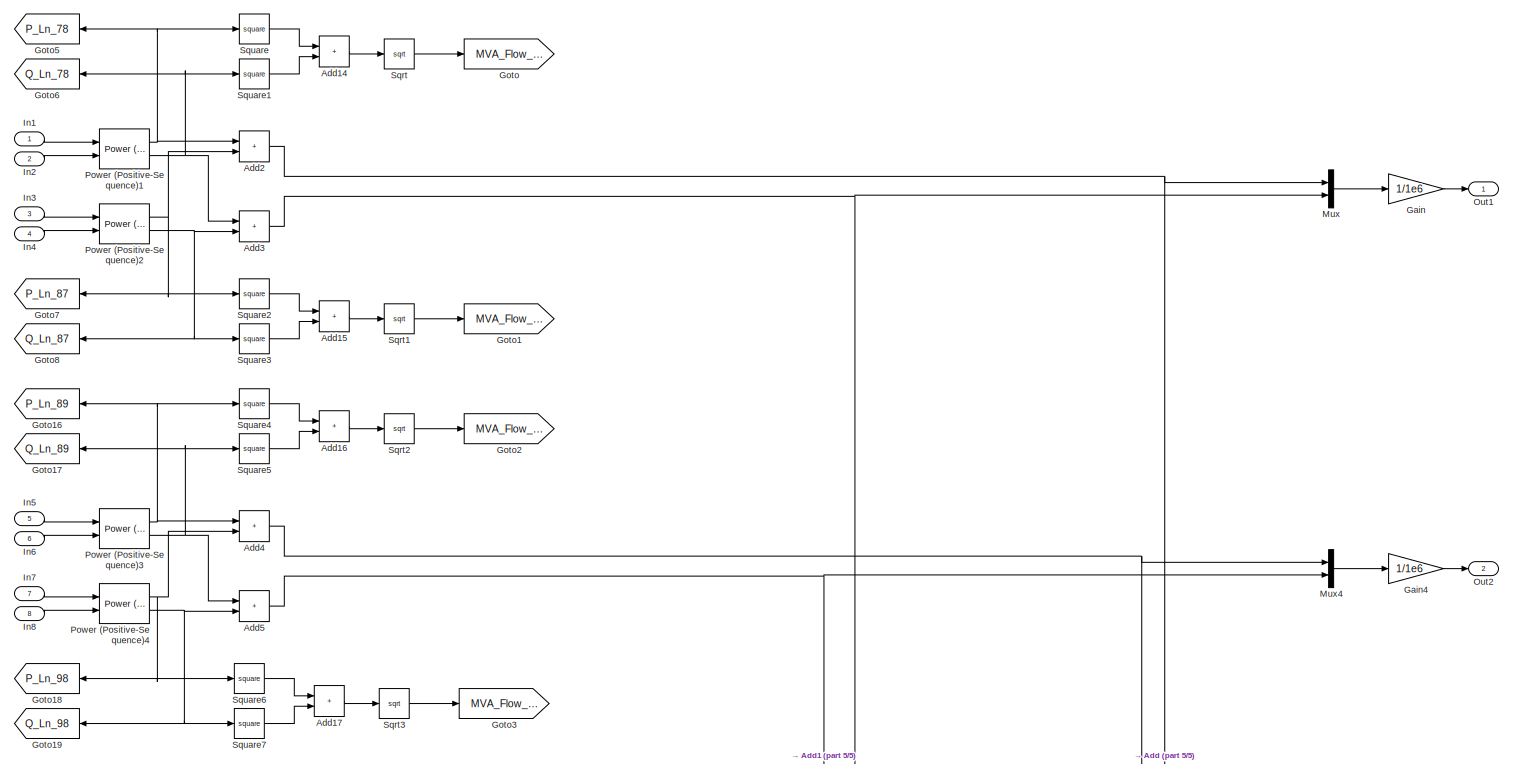
[diagram: Power Balance/Line Losses - part 1/5, full width, top band]
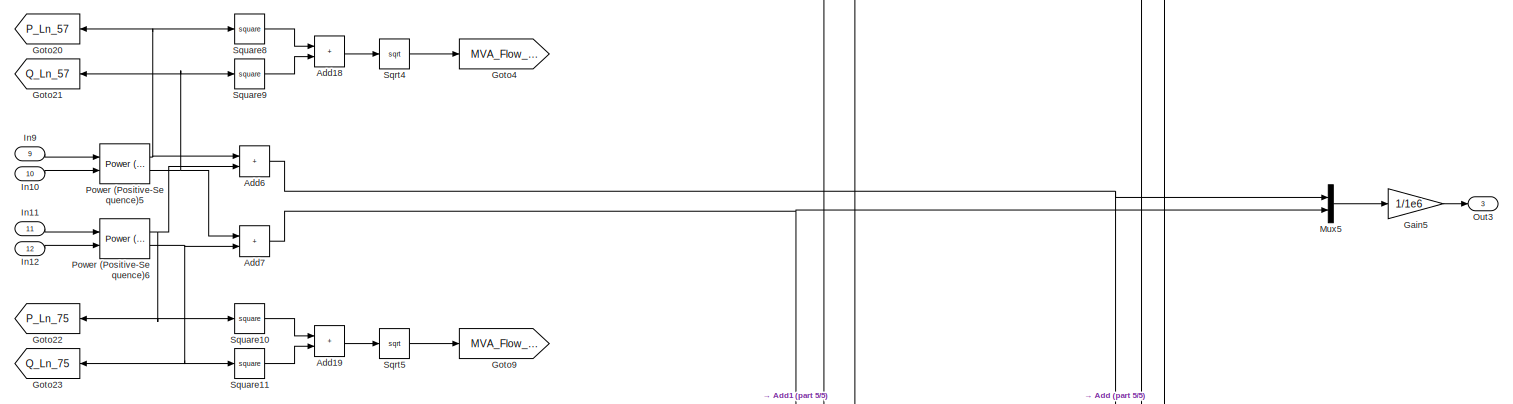
[diagram: Power Balance/Line Losses - part 2/5, full width, middle band]
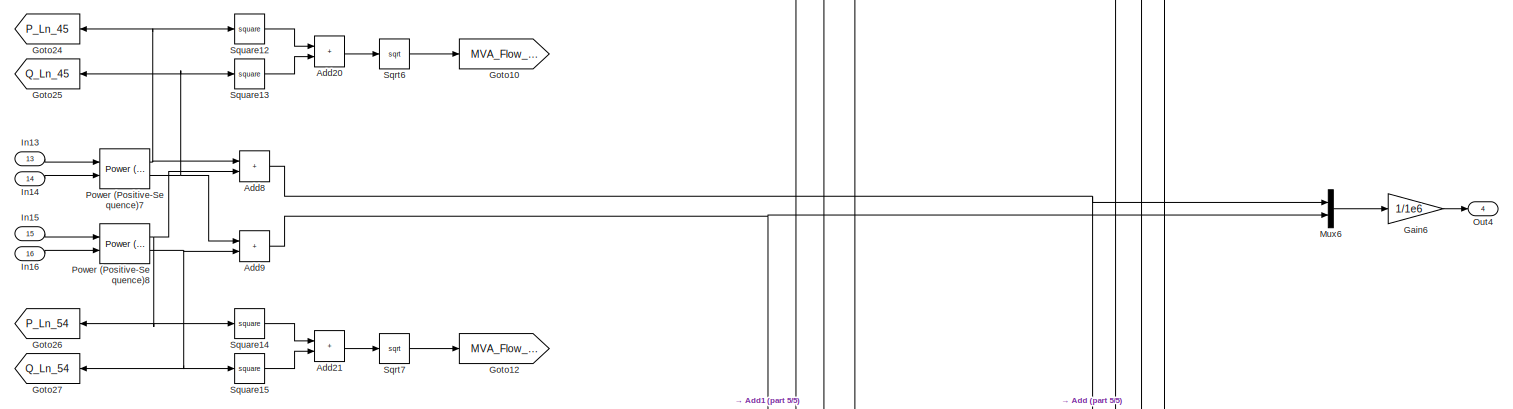
[diagram: Power Balance/Line Losses - part 3/5, full width, middle band]
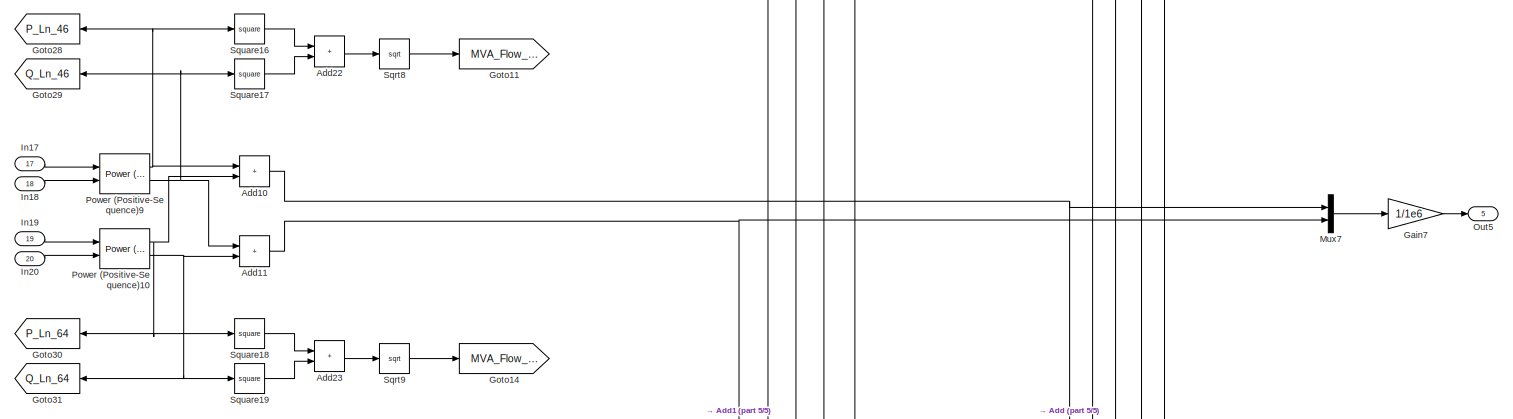
[diagram: Power Balance/Line Losses - part 4/5, full width, middle band]
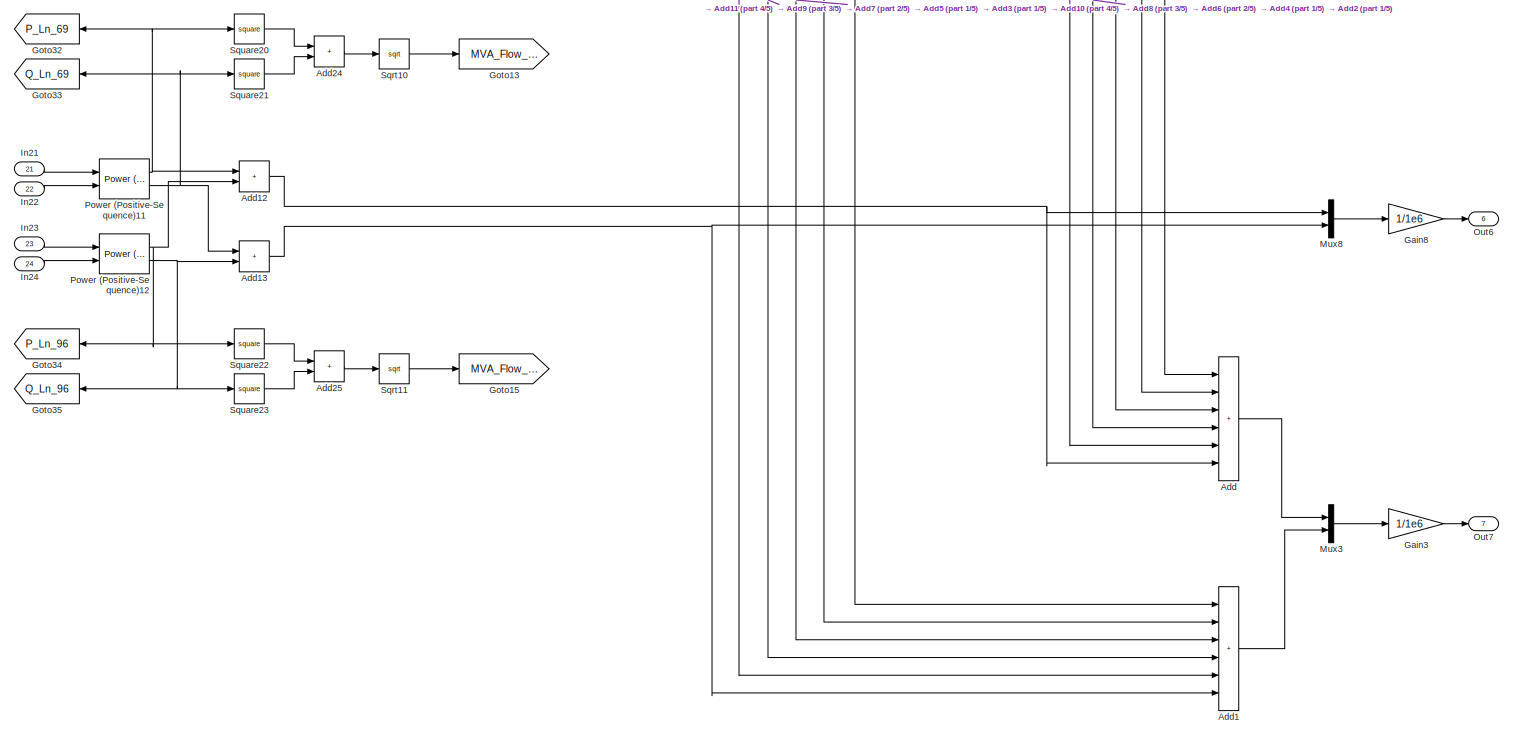
[diagram: Power Balance/Line Losses - part 5/5, full width, bottom band]
BLOCK [SubSystem] Power Balance/Line Losses
  Ports = [24, 7]
  RequestExecContextInheritance = off
BLOCK [Sum] Power Balance/Line Losses/Add
  IconShape = rectangular
  Inputs = ++++++
  Ports = [6, 1]
BLOCK [Sum] Power Balance/Line Losses/Add1
  IconShape = rectangular
  Inputs = ++++++
  Ports = [6, 1]
BLOCK [Sum] Power Balance/Line Losses/Add10
  IconShape = rectangular
  Ports = [2, 1]
BLOCK [Sum] Power Balance/Line Losses/Add11
  IconShape = rectangular
  Ports = [2, 1]
BLOCK [Sum] Power Balance/Line Losses/Add12
  IconShape = rectangular
  Ports = [2, 1]
BLOCK [Sum] Power Balance/Line Losses/Add13
  IconShape = rectangular
  Ports = [2, 1]
BLOCK [Sum] Power Balance/Line Losses/Add14
  IconShape = rectangular
  Ports = [2, 1]
BLOCK [Sum] Power Balance/Line Losses/Add15
  IconShape = rectangular
  Ports = [2, 1]
BLOCK [Sum] Power Balance/Line Losses/Add16
  IconShape = rectangular
  Ports = [2, 1]
BLOCK [Sum] Power Balance/Line Losses/Add17
  IconShape = rectangular
  Ports = [2, 1]
BLOCK [Sum] Power Balance/Line Losses/Add18
  IconShape = rectangular
  Ports = [2, 1]
BLOCK [Sum] Power Balance/Line Losses/Add19
  IconShape = rectangular
  Ports = [2, 1]
BLOCK [Sum] Power Balance/Line Losses/Add2
  IconShape = rectangular
  Ports = [2, 1]
BLOCK [Sum] Power Balance/Line Losses/Add20
  IconShape = rectangular
  Ports = [2, 1]
BLOCK [Sum] Power Balance/Line Losses/Add21
  IconShape = rectangular
  Ports = [2, 1]
BLOCK [Sum] Power Balance/Line Losses/Add22
  IconShape = rectangular
  Ports = [2, 1]
BLOCK [Sum] Power Balance/Line Losses/Add23
  IconShape = rectangular
  Ports = [2, 1]
BLOCK [Sum] Power Balance/Line Losses/Add24
  IconShape = rectangular
  Ports = [2, 1]
BLOCK [Sum] Power Balance/Line Losses/Add25
  IconShape = rectangular
  Ports = [2, 1]
BLOCK [Sum] Power Balance/Line Losses/Add3
  IconShape = rectangular
  Ports = [2, 1]
BLOCK [Sum] Power Balance/Line Losses/Add4
  IconShape = rectangular
  Ports = [2, 1]
BLOCK [Sum] Power Balance/Line Losses/Add5
  IconShape = rectangular
  Ports = [2, 1]
BLOCK [Sum] Power Balance/Line Losses/Add6
  IconShape = rectangular
  Ports = [2, 1]
BLOCK [Sum] Power Balance/Line Losses/Add7
  IconShape = rectangular
  Ports = [2, 1]
BLOCK [Sum] Power Balance/Line Losses/Add8
  IconShape = rectangular
  Ports = [2, 1]
BLOCK [Sum] Power Balance/Line Losses/Add9
  IconShape = rectangular
  Ports = [2, 1]
BLOCK [Gain] Power Balance/Line Losses/Gain
  Gain = 1/1e6
BLOCK [Gain] Power Balance/Line Losses/Gain3
  Gain = 1/1e6
BLOCK [Gain] Power Balance/Line Losses/Gain4
  Gain = 1/1e6
BLOCK [Gain] Power Balance/Line Losses/Gain5
  Gain = 1/1e6
BLOCK [Gain] Power Balance/Line Losses/Gain6
  Gain = 1/1e6
BLOCK [Gain] Power Balance/Line Losses/Gain7
  Gain = 1/1e6
BLOCK [Gain] Power Balance/Line Losses/Gain8
  Gain = 1/1e6
BLOCK [Goto] Power Balance/Line Losses/Goto
  GotoTag = MVA_Flow_78
  TagVisibility = global
BLOCK [Goto] Power Balance/Line Losses/Goto1
  GotoTag = MVA_Flow_87
  TagVisibility = global
BLOCK [Goto] Power Balance/Line Losses/Goto10
  GotoTag = MVA_Flow_45
  TagVisibility = global
BLOCK [Goto] Power Balance/Line Losses/Goto11
  GotoTag = MVA_Flow_46
  TagVisibility = global
BLOCK [Goto] Power Balance/Line Losses/Goto12
  GotoTag = MVA_Flow_54
  TagVisibility = global
BLOCK [Goto] Power Balance/Line Losses/Goto13
  GotoTag = MVA_Flow_69
  TagVisibility = global
BLOCK [Goto] Power Balance/Line Losses/Goto14
  GotoTag = MVA_Flow_64
  TagVisibility = global
BLOCK [Goto] Power Balance/Line Losses/Goto15
  GotoTag = MVA_Flow_96
  TagVisibility = global
BLOCK [Goto] Power Balance/Line Losses/Goto16
  GotoTag = P_Ln_89
  TagVisibility = global
BLOCK [Goto] Power Balance/Line Losses/Goto17
  GotoTag = Q_Ln_89
  TagVisibility = global
BLOCK [Goto] Power Balance/Line Losses/Goto18
  GotoTag = P_Ln_98
  TagVisibility = global
BLOCK [Goto] Power Balance/Line Losses/Goto19
  GotoTag = Q_Ln_98
  TagVisibility = global
BLOCK [Goto] Power Balance/Line Losses/Goto2
  GotoTag = MVA_Flow_89
  TagVisibility = global
BLOCK [Goto] Power Balance/Line Losses/Goto20
  GotoTag = P_Ln_57
  TagVisibility = global
BLOCK [Goto] Power Balance/Line Losses/Goto21
  GotoTag = Q_Ln_57
  TagVisibility = global
BLOCK [Goto] Power Balance/Line Losses/Goto22
  GotoTag = P_Ln_75
  TagVisibility = global
BLOCK [Goto] Power Balance/Line Losses/Goto23
  GotoTag = Q_Ln_75
  TagVisibility = global
BLOCK [Goto] Power Balance/Line Losses/Goto24
  GotoTag = P_Ln_45
  TagVisibility = global
BLOCK [Goto] Power Balance/Line Losses/Goto25
  GotoTag = Q_Ln_45
  TagVisibility = global
BLOCK [Goto] Power Balance/Line Losses/Goto26
  GotoTag = P_Ln_54
  TagVisibility = global
BLOCK [Goto] Power Balance/Line Losses/Goto27
  GotoTag = Q_Ln_54
  TagVisibility = global
BLOCK [Goto] Power Balance/Line Losses/Goto28
  GotoTag = P_Ln_46
  TagVisibility = global
BLOCK [Goto] Power Balance/Line Losses/Goto29
  GotoTag = Q_Ln_46
  TagVisibility = global
BLOCK [Goto] Power Balance/Line Losses/Goto3
  GotoTag = MVA_Flow_98
  TagVisibility = global
BLOCK [Goto] Power Balance/Line Losses/Goto30
  GotoTag = P_Ln_64
  TagVisibility = global
BLOCK [Goto] Power Balance/Line Losses/Goto31
  GotoTag = Q_Ln_64
  TagVisibility = global
BLOCK [Goto] Power Balance/Line Losses/Goto32
  GotoTag = P_Ln_69
  TagVisibility = global
BLOCK [Goto] Power Balance/Line Losses/Goto33
  GotoTag = Q_Ln_69
  TagVisibility = global
BLOCK [Goto] Power Balance/Line Losses/Goto34
  GotoTag = P_Ln_96
  TagVisibility = global
BLOCK [Goto] Power Balance/Line Losses/Goto35
  GotoTag = Q_Ln_96
  TagVisibility = global
BLOCK [Goto] Power Balance/Line Losses/Goto4
  GotoTag = MVA_Flow_57
  TagVisibility = global
BLOCK [Goto] Power Balance/Line Losses/Goto5
  GotoTag = P_Ln_78
  TagVisibility = global
BLOCK [Goto] Power Balance/Line Losses/Goto6
  GotoTag = Q_Ln_78
  TagVisibility = global
BLOCK [Goto] Power Balance/Line Losses/Goto7
  GotoTag = P_Ln_87
  TagVisibility = global
BLOCK [Goto] Power Balance/Line Losses/Goto8
  GotoTag = Q_Ln_87
  TagVisibility = global
BLOCK [Goto] Power Balance/Line Losses/Goto9
  GotoTag = MVA_Flow_75
  TagVisibility = global
BLOCK [Inport] Power Balance/Line Losses/In1
BLOCK [Inport] Power Balance/Line Losses/In10
  Port = 10
BLOCK [Inport] Power Balance/Line Losses/In11
  Port = 11
BLOCK [Inport] Power Balance/Line Losses/In12
  Port = 12
BLOCK [Inport] Power Balance/Line Losses/In13
  Port = 13
BLOCK [Inport] Power Balance/Line Losses/In14
  Port = 14
BLOCK [Inport] Power Balance/Line Losses/In15
  Port = 15
BLOCK [Inport] Power Balance/Line Losses/In16
  Port = 16
BLOCK [Inport] Power Balance/Line Losses/In17
  Port = 17
BLOCK [Inport] Power Balance/Line Losses/In18
  Port = 18
BLOCK [Inport] Power Balance/Line Losses/In19
  Port = 19
BLOCK [Inport] Power Balance/Line Losses/In2
  Port = 2
BLOCK [Inport] Power Balance/Line Losses/In20
  Port = 20
BLOCK [Inport] Power Balance/Line Losses/In21
  Port = 21
BLOCK [Inport] Power Balance/Line Losses/In22
  Port = 22
BLOCK [Inport] Power Balance/Line Losses/In23
  Port = 23
BLOCK [Inport] Power Balance/Line Losses/In24
  Port = 24
BLOCK [Inport] Power Balance/Line Losses/In3
  Port = 3
BLOCK [Inport] Power Balance/Line Losses/In4
  Port = 4
BLOCK [Inport] Power Balance/Line Losses/In5
  Port = 5
BLOCK [Inport] Power Balance/Line Losses/In6
  Port = 6
BLOCK [Inport] Power Balance/Line Losses/In7
  Port = 7
BLOCK [Inport] Power Balance/Line Losses/In8
  Port = 8
BLOCK [Inport] Power Balance/Line Losses/In9
  Port = 9
BLOCK [Mux] Power Balance/Line Losses/Mux
  DisplayOption = bar
  Inputs = 2
  Ports = [2, 1]
BLOCK [Mux] Power Balance/Line Losses/Mux3
  DisplayOption = bar
  Inputs = 2
  Ports = [2, 1]
BLOCK [Mux] Power Balance/Line Losses/Mux4
  DisplayOption = bar
  Inputs = 2
  Ports = [2, 1]
BLOCK [Mux] Power Balance/Line Losses/Mux5
  DisplayOption = bar
  Inputs = 2
  Ports = [2, 1]
BLOCK [Mux] Power Balance/Line Losses/Mux6
  DisplayOption = bar
  Inputs = 2
  Ports = [2, 1]
BLOCK [Mux] Power Balance/Line Losses/Mux7
  DisplayOption = bar
  Inputs = 2
  Ports = [2, 1]
BLOCK [Mux] Power Balance/Line Losses/Mux8
  DisplayOption = bar
  Inputs = 2
  Ports = [2, 1]
BLOCK [Outport] Power Balance/Line Losses/Out1
  VectorParamsAs1DForOutWhenUnconnected = off
BLOCK [Outport] Power Balance/Line Losses/Out2
  Port = 2
  VectorParamsAs1DForOutWhenUnconnected = off
BLOCK [Outport] Power Balance/Line Losses/Out3
  Port = 3
  VectorParamsAs1DForOutWhenUnconnected = off
BLOCK [Outport] Power Balance/Line Losses/Out4
  Port = 4
  VectorParamsAs1DForOutWhenUnconnected = off
BLOCK [Outport] Power Balance/Line Losses/Out5
  Port = 5
  VectorParamsAs1DForOutWhenUnconnected = off
BLOCK [Outport] Power Balance/Line Losses/Out6
  Port = 6
  VectorParamsAs1DForOutWhenUnconnected = off
BLOCK [Outport] Power Balance/Line Losses/Out7
  Port = 7
  VectorParamsAs1DForOutWhenUnconnected = off
BLOCK [Reference] Power Balance/Line Losses/Power (Positive-Sequence)1  REF=spsPowerPositiveSequenceLib/Power
(Positive-Sequence)
  Ports = [2, 2]
  SourceBlock = spsPowerPositiveSequenceLib/Power\n(Positive-Sequence)
  SourceProductBaseCode = PS
  SourceType = Power (Positive-Sequence)
BLOCK [Reference] Power Balance/Line Losses/Power (Positive-Sequence)10  REF=spsPowerPositiveSequenceLib/Power
(Positive-Sequence)
  Ports = [2, 2]
  SourceBlock = spsPowerPositiveSequenceLib/Power\n(Positive-Sequence)
  SourceProductBaseCode = PS
  SourceType = Power (Positive-Sequence)
BLOCK [Reference] Power Balance/Line Losses/Power (Positive-Sequence)11  REF=spsPowerPositiveSequenceLib/Power
(Positive-Sequence)
  Ports = [2, 2]
  SourceBlock = spsPowerPositiveSequenceLib/Power\n(Positive-Sequence)
  SourceProductBaseCode = PS
  SourceType = Power (Positive-Sequence)
BLOCK [Reference] Power Balance/Line Losses/Power (Positive-Sequence)12  REF=spsPowerPositiveSequenceLib/Power
(Positive-Sequence)
  Ports = [2, 2]
  SourceBlock = spsPowerPositiveSequenceLib/Power\n(Positive-Sequence)
  SourceProductBaseCode = PS
  SourceType = Power (Positive-Sequence)
BLOCK [Reference] Power Balance/Line Losses/Power (Positive-Sequence)2  REF=spsPowerPositiveSequenceLib/Power
(Positive-Sequence)
  Ports = [2, 2]
  SourceBlock = spsPowerPositiveSequenceLib/Power\n(Positive-Sequence)
  SourceProductBaseCode = PS
  SourceType = Power (Positive-Sequence)
BLOCK [Reference] Power Balance/Line Losses/Power (Positive-Sequence)3  REF=spsPowerPositiveSequenceLib/Power
(Positive-Sequence)
  Ports = [2, 2]
  SourceBlock = spsPowerPositiveSequenceLib/Power\n(Positive-Sequence)
  SourceProductBaseCode = PS
  SourceType = Power (Positive-Sequence)
BLOCK [Reference] Power Balance/Line Losses/Power (Positive-Sequence)4  REF=spsPowerPositiveSequenceLib/Power
(Positive-Sequence)
  Ports = [2, 2]
  SourceBlock = spsPowerPositiveSequenceLib/Power\n(Positive-Sequence)
  SourceProductBaseCode = PS
  SourceType = Power (Positive-Sequence)
BLOCK [Reference] Power Balance/Line Losses/Power (Positive-Sequence)5  REF=spsPowerPositiveSequenceLib/Power
(Positive-Sequence)
  Ports = [2, 2]
  SourceBlock = spsPowerPositiveSequenceLib/Power\n(Positive-Sequence)
  SourceProductBaseCode = PS
  SourceType = Power (Positive-Sequence)
BLOCK [Reference] Power Balance/Line Losses/Power (Positive-Sequence)6  REF=spsPowerPositiveSequenceLib/Power
(Positive-Sequence)
  Ports = [2, 2]
  SourceBlock = spsPowerPositiveSequenceLib/Power\n(Positive-Sequence)
  SourceProductBaseCode = PS
  SourceType = Power (Positive-Sequence)
BLOCK [Reference] Power Balance/Line Losses/Power (Positive-Sequence)7  REF=spsPowerPositiveSequenceLib/Power
(Positive-Sequence)
  Ports = [2, 2]
  SourceBlock = spsPowerPositiveSequenceLib/Power\n(Positive-Sequence)
  SourceProductBaseCode = PS
  SourceType = Power (Positive-Sequence)
BLOCK [Reference] Power Balance/Line Losses/Power (Positive-Sequence)8  REF=spsPowerPositiveSequenceLib/Power
(Positive-Sequence)
  Ports = [2, 2]
  SourceBlock = spsPowerPositiveSequenceLib/Power\n(Positive-Sequence)
  SourceProductBaseCode = PS
  SourceType = Power (Positive-Sequence)
BLOCK [Reference] Power Balance/Line Losses/Power (Positive-Sequence)9  REF=spsPowerPositiveSequenceLib/Power
(Positive-Sequence)
  Ports = [2, 2]
  SourceBlock = spsPowerPositiveSequenceLib/Power\n(Positive-Sequence)
  SourceProductBaseCode = PS
  SourceType = Power (Positive-Sequence)
BLOCK [Sqrt] Power Balance/Line Losses/Sqrt
BLOCK [Sqrt] Power Balance/Line Losses/Sqrt1
BLOCK [Sqrt] Power Balance/Line Losses/Sqrt10
BLOCK [Sqrt] Power Balance/Line Losses/Sqrt11
BLOCK [Sqrt] Power Balance/Line Losses/Sqrt2
BLOCK [Sqrt] Power Balance/Line Losses/Sqrt3
BLOCK [Sqrt] Power Balance/Line Losses/Sqrt4
BLOCK [Sqrt] Power Balance/Line Losses/Sqrt5
BLOCK [Sqrt] Power Balance/Line Losses/Sqrt6
BLOCK [Sqrt] Power Balance/Line Losses/Sqrt7
BLOCK [Sqrt] Power Balance/Line Losses/Sqrt8
BLOCK [Sqrt] Power Balance/Line Losses/Sqrt9
BLOCK [Math] Power Balance/Line Losses/Square
  Operator = square
  Ports = [1, 1]
  SignedPower = on
BLOCK [Math] Power Balance/Line Losses/Square1
  Operator = square
  Ports = [1, 1]
  SignedPower = on
BLOCK [Math] Power Balance/Line Losses/Square10
  Operator = square
  Ports = [1, 1]
  SignedPower = on
BLOCK [Math] Power Balance/Line Losses/Square11
  Operator = square
  Ports = [1, 1]
  SignedPower = on
BLOCK [Math] Power Balance/Line Losses/Square12
  Operator = square
  Ports = [1, 1]
  SignedPower = on
BLOCK [Math] Power Balance/Line Losses/Square13
  Operator = square
  Ports = [1, 1]
  SignedPower = on
BLOCK [Math] Power Balance/Line Losses/Square14
  Operator = square
  Ports = [1, 1]
  SignedPower = on
BLOCK [Math] Power Balance/Line Losses/Square15
  Operator = square
  Ports = [1, 1]
  SignedPower = on
BLOCK [Math] Power Balance/Line Losses/Square16
  Operator = square
  Ports = [1, 1]
  SignedPower = on
BLOCK [Math] Power Balance/Line Losses/Square17
  Operator = square
  Ports = [1, 1]
  SignedPower = on
BLOCK [Math] Power Balance/Line Losses/Square18
  Operator = square
  Ports = [1, 1]
  SignedPower = on
BLOCK [Math] Power Balance/Line Losses/Square19
  Operator = square
  Ports = [1, 1]
  SignedPower = on
BLOCK [Math] Power Balance/Line Losses/Square2
  Operator = square
  Ports = [1, 1]
  SignedPower = on
BLOCK [Math] Power Balance/Line Losses/Square20
  Operator = square
  Ports = [1, 1]
  SignedPower = on
BLOCK [Math] Power Balance/Line Losses/Square21
  Operator = square
  Ports = [1, 1]
  SignedPower = on
BLOCK [Math] Power Balance/Line Losses/Square22
  Operator = square
  Ports = [1, 1]
  SignedPower = on
BLOCK [Math] Power Balance/Line Losses/Square23
  Operator = square
  Ports = [1, 1]
  SignedPower = on
BLOCK [Math] Power Balance/Line Losses/Square3
  Operator = square
  Ports = [1, 1]
  SignedPower = on
BLOCK [Math] Power Balance/Line Losses/Square4
  Operator = square
  Ports = [1, 1]
  SignedPower = on
BLOCK [Math] Power Balance/Line Losses/Square5
  Operator = square
  Ports = [1, 1]
  SignedPower = on
BLOCK [Math] Power Balance/Line Losses/Square6
  Operator = square
  Ports = [1, 1]
  SignedPower = on
BLOCK [Math] Power Balance/Line Losses/Square7
  Operator = square
  Ports = [1, 1]
  SignedPower = on
BLOCK [Math] Power Balance/Line Losses/Square8
  Operator = square
  Ports = [1, 1]
  SignedPower = on
BLOCK [Math] Power Balance/Line Losses/Square9
  Operator = square
  Ports = [1, 1]
  SignedPower = on
BLOCK [Display] Power Balance/Line_45 - Active Power (MW) and Reactive Power (MVAR)
  Decimation = 1
  Ports = [1]
BLOCK [Display] Power Balance/Line_46 - Active Power (MW) and Reactive Power (MVAR)
  Decimation = 1
  Ports = [1]
BLOCK [Display] Power Balance/Line_57 - Active Power (MW) and Reactive Power (MVAR)
  Decimation = 1
  Ports = [1]
BLOCK [Display] Power Balance/Line_69 - Active Power (MW) and Reactive Power (MVAR)
  Decimation = 1
  Ports = [1]
BLOCK [Display] Power Balance/Line_78 - Active Power (MW) and Reactive Power (MVAR)
  Decimation = 1
  Ports = [1]
BLOCK [Display] Power Balance/Line_89 - Active Power (MW) and Reactive Power (MVAR)
  Decimation = 1
  Ports = [1]
BLOCK [Display] Power Balance/Load A - Active Power (MW) and Reactive Power (MVAR)
  Commented = on
  Decimation = 1
  Ports = [1]
BLOCK [Display] Power Balance/Load B - Active Power (MW) and Reactive Power (MVAR)
  Commented = on
  Decimation = 1
  Ports = [1]
BLOCK [Display] Power Balance/Load C - Active Power (MW) and Reactive Power (MVAR)
  Commented = on
  Decimation = 1
  Ports = [1]
BLOCK [SubSystem] Power Balance/Load Powers
  Commented = on
  Ports = [6, 4]
  RequestExecContextInheritance = off
BLOCK [Sum] Power Balance/Load Powers/Add
  IconShape = rectangular
  Inputs = +++
  Ports = [3, 1]
BLOCK [Sum] Power Balance/Load Powers/Add1
  IconShape = rectangular
  Inputs = +++
  Ports = [3, 1]
BLOCK [Gain] Power Balance/Load Powers/Gain
  Gain = 1/1e6
BLOCK [Gain] Power Balance/Load Powers/Gain1
  Gain = 1/1e6
BLOCK [Gain] Power Balance/Load Powers/Gain2
  Gain = 1/1e6
BLOCK [Gain] Power Balance/Load Powers/Gain3
  Gain = 1/1e6
BLOCK [Inport] Power Balance/Load Powers/In1
BLOCK [Inport] Power Balance/Load Powers/In2
  Port = 2
BLOCK [Inport] Power Balance/Load Powers/In3
  Port = 3
BLOCK [Inport] Power Balance/Load Powers/In4
  Port = 4
BLOCK [Inport] Power Balance/Load Powers/In5
  Port = 5
BLOCK [Inport] Power Balance/Load Powers/In6
  Port = 6
BLOCK [Mux] Power Balance/Load Powers/Mux
  DisplayOption = bar
  Inputs = 2
  Ports = [2, 1]
BLOCK [Mux] Power Balance/Load Powers/Mux1
  DisplayOption = bar
  Inputs = 2
  Ports = [2, 1]
BLOCK [Mux] Power Balance/Load Powers/Mux2
  DisplayOption = bar
  Inputs = 2
  Ports = [2, 1]
BLOCK [Mux] Power Balance/Load Powers/Mux3
  DisplayOption = bar
  Inputs = 2
  Ports = [2, 1]
BLOCK [Outport] Power Balance/Load Powers/Out1
  VectorParamsAs1DForOutWhenUnconnected = off
BLOCK [Outport] Power Balance/Load Powers/Out2
  Port = 2
  VectorParamsAs1DForOutWhenUnconnected = off
BLOCK [Outport] Power Balance/Load Powers/Out3
  Port = 3
  VectorParamsAs1DForOutWhenUnconnected = off
BLOCK [Outport] Power Balance/Load Powers/Out4
  Port = 4
  VectorParamsAs1DForOutWhenUnconnected = off
BLOCK [Reference] Power Balance/Load Powers/Power (Positive-Sequence)1  REF=spsPowerPositiveSequenceLib/Power
(Positive-Sequence)
  Ports = [2, 2]
  SourceBlock = spsPowerPositiveSequenceLib/Power\n(Positive-Sequence)
  SourceProductBaseCode = PS
  SourceType = Power (Positive-Sequence)
BLOCK [Reference] Power Balance/Load Powers/Power (Positive-Sequence)2  REF=spsPowerPositiveSequenceLib/Power
(Positive-Sequence)
  Ports = [2, 2]
  SourceBlock = spsPowerPositiveSequenceLib/Power\n(Positive-Sequence)
  SourceProductBaseCode = PS
  SourceType = Power (Positive-Sequence)
BLOCK [Reference] Power Balance/Load Powers/Power (Positive-Sequence)3  REF=spsPowerPositiveSequenceLib/Power
(Positive-Sequence)
  Ports = [2, 2]
  SourceBlock = spsPowerPositiveSequenceLib/Power\n(Positive-Sequence)
  SourceProductBaseCode = PS
  SourceType = Power (Positive-Sequence)
BLOCK [Display] Power Balance/Total Gen - Active Power (MW) and Reactive Power (MVAR)
  Commented = on
  Decimation = 1
  Format = long
  Ports = [1]
BLOCK [Display] Power Balance/Total Line Losses - Active Power (MW) and Reactive Power (MVAR)2
  Decimation = 1
  Format = long
  Ports = [1]
BLOCK [Display] Power Balance/Total Load - Active Power (MW) and Reactive Power (MVAR)
  Commented = on
  Decimation = 1
  Format = long
  Ports = [1]
BLOCK [Display] Power Balance/Total Transformer Losses - Active Power (MW) and Reactive Power (MVAR)
  Commented = on
  Decimation = 1
  Format = long
  Ports = [1]
BLOCK [SubSystem] Power Balance/Transformer Losses
  Commented = on
  Ports = [12, 4]
  RequestExecContextInheritance = off
BLOCK [Sum] Power Balance/Transformer Losses/Add
  IconShape = rectangular
  Inputs = +++
  Ports = [3, 1]
BLOCK [Sum] Power Balance/Transformer Losses/Add1
  IconShape = rectangular
  Inputs = +++
  Ports = [3, 1]
BLOCK [Sum] Power Balance/Transformer Losses/Add2
  IconShape = rectangular
  Inputs = +-
  Ports = [2, 1]
BLOCK [Sum] Power Balance/Transformer Losses/Add3
  IconShape = rectangular
  Inputs = +-
  Ports = [2, 1]
BLOCK [Sum] Power Balance/Transformer Losses/Add4
  IconShape = rectangular
  Inputs = +-
  Ports = [2, 1]
BLOCK [Sum] Power Balance/Transformer Losses/Add5
  IconShape = rectangular
  Inputs = +-
  Ports = [2, 1]
BLOCK [Sum] Power Balance/Transformer Losses/Add6
  IconShape = rectangular
  Inputs = +-
  Ports = [2, 1]
BLOCK [Sum] Power Balance/Transformer Losses/Add7
  IconShape = rectangular
  Inputs = +-
  Ports = [2, 1]
BLOCK [Gain] Power Balance/Transformer Losses/Gain
  Gain = 1/1e6
BLOCK [Gain] Power Balance/Transformer Losses/Gain3
  Gain = 1/1e6
BLOCK [Gain] Power Balance/Transformer Losses/Gain4
  Gain = 1/1e6
BLOCK [Gain] Power Balance/Transformer Losses/Gain5
  Gain = 1/1e6
BLOCK [Inport] Power Balance/Transformer Losses/In1
BLOCK [Inport] Power Balance/Transformer Losses/In10
  Port = 10
BLOCK [Inport] Power Balance/Transformer Losses/In11
  Port = 11
BLOCK [Inport] Power Balance/Transformer Losses/In12
  Port = 12
BLOCK [Inport] Power Balance/Transformer Losses/In2
  Port = 2
BLOCK [Inport] Power Balance/Transformer Losses/In3
  Port = 3
BLOCK [Inport] Power Balance/Transformer Losses/In4
  Port = 4
BLOCK [Inport] Power Balance/Transformer Losses/In5
  Port = 5
BLOCK [Inport] Power Balance/Transformer Losses/In6
  Port = 6
BLOCK [Inport] Power Balance/Transformer Losses/In7
  Port = 7
BLOCK [Inport] Power Balance/Transformer Losses/In8
  Port = 8
BLOCK [Inport] Power Balance/Transformer Losses/In9
  Port = 9
BLOCK [Mux] Power Balance/Transformer Losses/Mux
  DisplayOption = bar
  Inputs = 2
  Ports = [2, 1]
BLOCK [Mux] Power Balance/Transformer Losses/Mux3
  DisplayOption = bar
  Inputs = 2
  Ports = [2, 1]
BLOCK [Mux] Power Balance/Transformer Losses/Mux4
  DisplayOption = bar
  Inputs = 2
  Ports = [2, 1]
BLOCK [Mux] Power Balance/Transformer Losses/Mux5
  DisplayOption = bar
  Inputs = 2
  Ports = [2, 1]
BLOCK [Outport] Power Balance/Transformer Losses/Out1
  VectorParamsAs1DForOutWhenUnconnected = off
BLOCK [Outport] Power Balance/Transformer Losses/Out2
  Port = 2
  VectorParamsAs1DForOutWhenUnconnected = off
BLOCK [Outport] Power Balance/Transformer Losses/Out3
  Port = 3
  VectorParamsAs1DForOutWhenUnconnected = off
BLOCK [Outport] Power Balance/Transformer Losses/Out4
  Port = 4
  VectorParamsAs1DForOutWhenUnconnected = off
BLOCK [Reference] Power Balance/Transformer Losses/Power (Positive-Sequence)1  REF=spsPowerPositiveSequenceLib/Power
(Positive-Sequence)
  Ports = [2, 2]
  SourceBlock = spsPowerPositiveSequenceLib/Power\n(Positive-Sequence)
  SourceProductBaseCode = PS
  SourceType = Power (Positive-Sequence)
BLOCK [Reference] Power Balance/Transformer Losses/Power (Positive-Sequence)2  REF=spsPowerPositiveSequenceLib/Power
(Positive-Sequence)
  Ports = [2, 2]
  SourceBlock = spsPowerPositiveSequenceLib/Power\n(Positive-Sequence)
  SourceProductBaseCode = PS
  SourceType = Power (Positive-Sequence)
BLOCK [Reference] Power Balance/Transformer Losses/Power (Positive-Sequence)3  REF=spsPowerPositiveSequenceLib/Power
(Positive-Sequence)
  Ports = [2, 2]
  SourceBlock = spsPowerPositiveSequenceLib/Power\n(Positive-Sequence)
  SourceProductBaseCode = PS
  SourceType = Power (Positive-Sequence)
BLOCK [Reference] Power Balance/Transformer Losses/Power (Positive-Sequence)4  REF=spsPowerPositiveSequenceLib/Power
(Positive-Sequence)
  Ports = [2, 2]
  SourceBlock = spsPowerPositiveSequenceLib/Power\n(Positive-Sequence)
  SourceProductBaseCode = PS
  SourceType = Power (Positive-Sequence)
BLOCK [Reference] Power Balance/Transformer Losses/Power (Positive-Sequence)5  REF=spsPowerPositiveSequenceLib/Power
(Positive-Sequence)
  Ports = [2, 2]
  SourceBlock = spsPowerPositiveSequenceLib/Power\n(Positive-Sequence)
  SourceProductBaseCode = PS
  SourceType = Power (Positive-Sequence)
BLOCK [Reference] Power Balance/Transformer Losses/Power (Positive-Sequence)6  REF=spsPowerPositiveSequenceLib/Power
(Positive-Sequence)
  Ports = [2, 2]
  SourceBlock = spsPowerPositiveSequenceLib/Power\n(Positive-Sequence)
  SourceProductBaseCode = PS
  SourceType = Power (Positive-Sequence)
BLOCK [Display] Power Balance/Transformer_X1 - Active Power (MW) and Reactive Power (MVAR)
  Commented = on
  Decimation = 1
  Ports = [1]
BLOCK [Display] Power Balance/Transformer_X2 - Active Power (MW) and Reactive Power (MVAR)
  Commented = on
  Decimation = 1
  Ports = [1]
BLOCK [Display] Power Balance/Transformer_X3 - Active Power (MW) and Reactive Power (MVAR)
  Commented = on
  Decimation = 1
  Ports = [1]
BLOCK [Relay] Relay
  OnSwitchValue = 20
BLOCK [Scope] Rotor Angle Deviations
  Floating = off
  NumInputPorts = 2
  Ports = [2]
  ScopeSpecificationString = Simulink.scopes.TimeScopeBlockCfg('CurrentConfiguration', extmgr.ConfigurationSet(extmgr.Configuration('Core','General UI',true),extmgr.Configuration('Core','Source UI',true),extmgr.Configuration('Sources','WiredSimulink',true,'DataLoggingVariableName','ScopeData3'),extmgr.Configuration('Visuals','Time Domain',true,'SerializedDisplays',{struct('MinYLimReal','-1.68215','MaxYLimReal','88.23834','YLa...<+2076ch>
BLOCK [Scope] Scope
  Floating = off
  NumInputPorts = 2
  Ports = [2]
  ScopeSpecificationString = Simulink.scopes.TimeScopeBlockCfg('CurrentConfiguration', extmgr.ConfigurationSet(extmgr.Configuration('Core','General UI',true),extmgr.Configuration('Core','Source UI',true),extmgr.Configuration('Sources','WiredSimulink',true,'DataLoggingVariableName','ScopeData1'),extmgr.Configuration('Visuals','Time Domain',true,'SerializedDisplays',{struct('MinYLimReal','-422933.23095','MaxYLimReal','422934.91...<+2104ch>
BLOCK [Scope] Scope1
  Floating = off
  NumInputPorts = 3
  Ports = [3]
  ScopeSpecificationString = Simulink.scopes.TimeScopeBlockCfg('CurrentConfiguration', extmgr.ConfigurationSet(extmgr.Configuration('Core','General UI',true),extmgr.Configuration('Core','Source UI',true),extmgr.Configuration('Sources','WiredSimulink',true,'DataLoggingVariableName','ScopeData1'),extmgr.Configuration('Visuals','Time Domain',true,'SerializedDisplays',{struct('MinYLimReal','-84.10422','MaxYLimReal','248.92946','Y...<+2770ch>
BLOCK [Reference] Shunt Compensation 200 MVAr  REF=spsThreePhaseParallelRLCLoadLib/Three-Phase
Parallel RLC Load
  AttributesFormatString = \n
  NameLocation = right
  Ports = [0, 0, 0, 0, 0, 3]
  SourceBlock = spsThreePhaseParallelRLCLoadLib/Three-Phase\nParallel RLC Load
  SourceProductBaseCode = PS
  SourceType = Three-Phase Parallel RLC Load
BLOCK [Reference] Shunt Compensation 350 MVAr  REF=spsThreePhaseParallelRLCLoadLib/Three-Phase
Parallel RLC Load
  AttributesFormatString = \n
  NameLocation = right
  Ports = [0, 0, 0, 0, 0, 3]
  SourceBlock = spsThreePhaseParallelRLCLoadLib/Three-Phase\nParallel RLC Load
  SourceProductBaseCode = PS
  SourceType = Three-Phase Parallel RLC Load
BLOCK [Reference] Shunt Compensation 400 MVAr  REF=spsThreePhaseParallelRLCLoadLib/Three-Phase
Parallel RLC Load
  AttributesFormatString = \n
  NameLocation = right
  Ports = [0, 0, 0, 0, 0, 3]
  SourceBlock = spsThreePhaseParallelRLCLoadLib/Three-Phase\nParallel RLC Load
  SourceProductBaseCode = PS
  SourceType = Three-Phase Parallel RLC Load
BLOCK [Reference] Snb_G1  REF=spsThreePhaseSeriesRLCLoadLib/Three-Phase
Series RLC Load
  AttributesFormatString = \n
  NameLocation = right
  Ports = [0, 0, 0, 0, 0, 3]
  SourceBlock = spsThreePhaseSeriesRLCLoadLib/Three-Phase\nSeries RLC Load
  SourceProductBaseCode = PS
  SourceType = Three-Phase Series RLC Load
BLOCK [Reference] Snb_G2  REF=spsThreePhaseSeriesRLCLoadLib/Three-Phase
Series RLC Load
  AttributesFormatString = \n
  NameLocation = right
  Ports = [0, 0, 0, 0, 0, 3]
  SourceBlock = spsThreePhaseSeriesRLCLoadLib/Three-Phase\nSeries RLC Load
  SourceProductBaseCode = PS
  SourceType = Three-Phase Series RLC Load
BLOCK [Reference] Snb_G3  REF=spsThreePhaseSeriesRLCLoadLib/Three-Phase
Series RLC Load
  AttributesFormatString = \n
  NameLocation = right
  Ports = [0, 0, 0, 0, 0, 3]
  SourceBlock = spsThreePhaseSeriesRLCLoadLib/Three-Phase\nSeries RLC Load
  SourceProductBaseCode = PS
  SourceType = Three-Phase Series RLC Load
BLOCK [SubSystem] Subsystem_75
  Ports = [2]
  RequestExecContextInheritance = off
BLOCK [Demux] Subsystem_75/Demux2
  Outputs = 3
  Ports = [1, 3]
BLOCK [Demux] Subsystem_75/Demux3
  Outputs = 3
  Ports = [1, 3]
BLOCK [Reference] Subsystem_75/Fourier  REF=spsFourierLib/Fourier
  Ports = [1, 2]
  SourceBlock = spsFourierLib/Fourier
  SourceProductBaseCode = PS
  SourceType = Fourier
BLOCK [Reference] Subsystem_75/Fourier1  REF=spsFourierLib/Fourier
  Ports = [1, 2]
  SourceBlock = spsFourierLib/Fourier
  SourceProductBaseCode = PS
  SourceType = Fourier
BLOCK [Reference] Subsystem_75/Fourier2  REF=spsFourierLib/Fourier
  Ports = [1, 2]
  SourceBlock = spsFourierLib/Fourier
  SourceProductBaseCode = PS
  SourceType = Fourier
BLOCK [Reference] Subsystem_75/Fourier3  REF=spsFourierLib/Fourier
  Ports = [1, 2]
  SourceBlock = spsFourierLib/Fourier
  SourceProductBaseCode = PS
  SourceType = Fourier
BLOCK [Reference] Subsystem_75/Fourier4  REF=spsFourierLib/Fourier
  Ports = [1, 2]
  SourceBlock = spsFourierLib/Fourier
  SourceProductBaseCode = PS
  SourceType = Fourier
BLOCK [Reference] Subsystem_75/Fourier5  REF=spsFourierLib/Fourier
  Ports = [1, 2]
  SourceBlock = spsFourierLib/Fourier
  SourceProductBaseCode = PS
  SourceType = Fourier
BLOCK [Inport] Subsystem_75/In1
BLOCK [Inport] Subsystem_75/In2
  Port = 2
BLOCK [ToWorkspace] Subsystem_75/To Workspace
  FixptAsFi = on
  MaxDataPoints = inf
  Ports = [1]
  SampleTime = -1
  SaveFormat = Timeseries
  VariableName = V_75_magA
BLOCK [ToWorkspace] Subsystem_75/To Workspace1
  FixptAsFi = on
  MaxDataPoints = inf
  Ports = [1]
  SampleTime = -1
  SaveFormat = Timeseries
  VariableName = V_75_angleA
BLOCK [ToWorkspace] Subsystem_75/To Workspace10
  FixptAsFi = on
  MaxDataPoints = inf
  Ports = [1]
  SampleTime = -1
  SaveFormat = Timeseries
  VariableName = I_75_magC
BLOCK [ToWorkspace] Subsystem_75/To Workspace11
  FixptAsFi = on
  MaxDataPoints = inf
  Ports = [1]
  SampleTime = -1
  SaveFormat = Timeseries
  VariableName = I_75_angleC
BLOCK [ToWorkspace] Subsystem_75/To Workspace2
  FixptAsFi = on
  MaxDataPoints = inf
  Ports = [1]
  SampleTime = -1
  SaveFormat = Timeseries
  VariableName = V_75_magB
BLOCK [ToWorkspace] Subsystem_75/To Workspace3
  FixptAsFi = on
  MaxDataPoints = inf
  Ports = [1]
  SampleTime = -1
  SaveFormat = Timeseries
  VariableName = V_75_angleB
BLOCK [ToWorkspace] Subsystem_75/To Workspace4
  FixptAsFi = on
  MaxDataPoints = inf
  Ports = [1]
  SampleTime = -1
  SaveFormat = Timeseries
  VariableName = V_75_magC
BLOCK [ToWorkspace] Subsystem_75/To Workspace5
  FixptAsFi = on
  MaxDataPoints = inf
  Ports = [1]
  SampleTime = -1
  SaveFormat = Timeseries
  VariableName = V_75_angleC
BLOCK [ToWorkspace] Subsystem_75/To Workspace6
  FixptAsFi = on
  MaxDataPoints = inf
  Ports = [1]
  SampleTime = -1
  SaveFormat = Timeseries
  VariableName = I_75_magA
BLOCK [ToWorkspace] Subsystem_75/To Workspace7
  FixptAsFi = on
  MaxDataPoints = inf
  Ports = [1]
  SampleTime = -1
  SaveFormat = Timeseries
  VariableName = I_75_angleA
BLOCK [ToWorkspace] Subsystem_75/To Workspace8
  FixptAsFi = on
  MaxDataPoints = inf
  Ports = [1]
  SampleTime = -1
  SaveFormat = Timeseries
  VariableName = I_75_magB
BLOCK [ToWorkspace] Subsystem_75/To Workspace9
  FixptAsFi = on
  MaxDataPoints = inf
  Ports = [1]
  SampleTime = -1
  SaveFormat = Timeseries
  VariableName = I_75_angleB
BLOCK [SubSystem] Subsystem_78
  Ports = [2]
  RequestExecContextInheritance = off
BLOCK [Demux] Subsystem_78/Demux2
  Outputs = 3
  Ports = [1, 3]
BLOCK [Demux] Subsystem_78/Demux3
  Outputs = 3
  Ports = [1, 3]
BLOCK [Reference] Subsystem_78/Fourier  REF=spsFourierLib/Fourier
  Ports = [1, 2]
  SourceBlock = spsFourierLib/Fourier
  SourceProductBaseCode = PS
  SourceType = Fourier
BLOCK [Reference] Subsystem_78/Fourier1  REF=spsFourierLib/Fourier
  Ports = [1, 2]
  SourceBlock = spsFourierLib/Fourier
  SourceProductBaseCode = PS
  SourceType = Fourier
BLOCK [Reference] Subsystem_78/Fourier2  REF=spsFourierLib/Fourier
  Ports = [1, 2]
  SourceBlock = spsFourierLib/Fourier
  SourceProductBaseCode = PS
  SourceType = Fourier
BLOCK [Reference] Subsystem_78/Fourier3  REF=spsFourierLib/Fourier
  Ports = [1, 2]
  SourceBlock = spsFourierLib/Fourier
  SourceProductBaseCode = PS
  SourceType = Fourier
BLOCK [Reference] Subsystem_78/Fourier4  REF=spsFourierLib/Fourier
  Ports = [1, 2]
  SourceBlock = spsFourierLib/Fourier
  SourceProductBaseCode = PS
  SourceType = Fourier
BLOCK [Reference] Subsystem_78/Fourier5  REF=spsFourierLib/Fourier
  Ports = [1, 2]
  SourceBlock = spsFourierLib/Fourier
  SourceProductBaseCode = PS
  SourceType = Fourier
BLOCK [Inport] Subsystem_78/In1
BLOCK [Inport] Subsystem_78/In2
  Port = 2
BLOCK [ToWorkspace] Subsystem_78/To Workspace
  FixptAsFi = on
  MaxDataPoints = inf
  Ports = [1]
  SampleTime = -1
  SaveFormat = Timeseries
  VariableName = V_78_magA
BLOCK [ToWorkspace] Subsystem_78/To Workspace1
  FixptAsFi = on
  MaxDataPoints = inf
  Ports = [1]
  SampleTime = -1
  SaveFormat = Timeseries
  VariableName = V_78_angleA
BLOCK [ToWorkspace] Subsystem_78/To Workspace10
  FixptAsFi = on
  MaxDataPoints = inf
  Ports = [1]
  SampleTime = -1
  SaveFormat = Timeseries
  VariableName = I_78_magC
BLOCK [ToWorkspace] Subsystem_78/To Workspace11
  FixptAsFi = on
  MaxDataPoints = inf
  Ports = [1]
  SampleTime = -1
  SaveFormat = Timeseries
  VariableName = I_78_angleC
BLOCK [ToWorkspace] Subsystem_78/To Workspace2
  FixptAsFi = on
  MaxDataPoints = inf
  Ports = [1]
  SampleTime = -1
  SaveFormat = Timeseries
  VariableName = V_78_magB
BLOCK [ToWorkspace] Subsystem_78/To Workspace3
  FixptAsFi = on
  MaxDataPoints = inf
  Ports = [1]
  SampleTime = -1
  SaveFormat = Timeseries
  VariableName = V_78_angleB
BLOCK [ToWorkspace] Subsystem_78/To Workspace4
  FixptAsFi = on
  MaxDataPoints = inf
  Ports = [1]
  SampleTime = -1
  SaveFormat = Timeseries
  VariableName = V_78_magC
BLOCK [ToWorkspace] Subsystem_78/To Workspace5
  FixptAsFi = on
  MaxDataPoints = inf
  Ports = [1]
  SampleTime = -1
  SaveFormat = Timeseries
  VariableName = V_78_angleC
BLOCK [ToWorkspace] Subsystem_78/To Workspace6
  FixptAsFi = on
  MaxDataPoints = inf
  Ports = [1]
  SampleTime = -1
  SaveFormat = Timeseries
  VariableName = I_78_magA
BLOCK [ToWorkspace] Subsystem_78/To Workspace7
  FixptAsFi = on
  MaxDataPoints = inf
  Ports = [1]
  SampleTime = -1
  SaveFormat = Timeseries
  VariableName = I_78_angleA
BLOCK [ToWorkspace] Subsystem_78/To Workspace8
  FixptAsFi = on
  MaxDataPoints = inf
  Ports = [1]
  SampleTime = -1
  SaveFormat = Timeseries
  VariableName = I_78_magB
BLOCK [ToWorkspace] Subsystem_78/To Workspace9
  FixptAsFi = on
  MaxDataPoints = inf
  Ports = [1]
  SampleTime = -1
  SaveFormat = Timeseries
  VariableName = I_78_angleB
BLOCK [SubSystem] Subsystem_87
  Ports = [2]
  RequestExecContextInheritance = off
BLOCK [Demux] Subsystem_87/Demux2
  Outputs = 3
  Ports = [1, 3]
BLOCK [Demux] Subsystem_87/Demux3
  Outputs = 3
  Ports = [1, 3]
BLOCK [Reference] Subsystem_87/Fourier  REF=spsFourierLib/Fourier
  Ports = [1, 2]
  SourceBlock = spsFourierLib/Fourier
  SourceProductBaseCode = PS
  SourceType = Fourier
BLOCK [Reference] Subsystem_87/Fourier1  REF=spsFourierLib/Fourier
  Ports = [1, 2]
  SourceBlock = spsFourierLib/Fourier
  SourceProductBaseCode = PS
  SourceType = Fourier
BLOCK [Reference] Subsystem_87/Fourier2  REF=spsFourierLib/Fourier
  Ports = [1, 2]
  SourceBlock = spsFourierLib/Fourier
  SourceProductBaseCode = PS
  SourceType = Fourier
BLOCK [Reference] Subsystem_87/Fourier3  REF=spsFourierLib/Fourier
  Ports = [1, 2]
  SourceBlock = spsFourierLib/Fourier
  SourceProductBaseCode = PS
  SourceType = Fourier
BLOCK [Reference] Subsystem_87/Fourier4  REF=spsFourierLib/Fourier
  Ports = [1, 2]
  SourceBlock = spsFourierLib/Fourier
  SourceProductBaseCode = PS
  SourceType = Fourier
BLOCK [Reference] Subsystem_87/Fourier5  REF=spsFourierLib/Fourier
  Ports = [1, 2]
  SourceBlock = spsFourierLib/Fourier
  SourceProductBaseCode = PS
  SourceType = Fourier
BLOCK [Inport] Subsystem_87/In1
BLOCK [Inport] Subsystem_87/In2
  Port = 2
BLOCK [ToWorkspace] Subsystem_87/To Workspace
  FixptAsFi = on
  MaxDataPoints = inf
  Ports = [1]
  SampleTime = -1
  SaveFormat = Timeseries
  VariableName = V_87_magA
BLOCK [ToWorkspace] Subsystem_87/To Workspace1
  FixptAsFi = on
  MaxDataPoints = inf
  Ports = [1]
  SampleTime = -1
  SaveFormat = Timeseries
  VariableName = V_87_angleA
BLOCK [ToWorkspace] Subsystem_87/To Workspace10
  FixptAsFi = on
  MaxDataPoints = inf
  Ports = [1]
  SampleTime = -1
  SaveFormat = Timeseries
  VariableName = I_87_magC
BLOCK [ToWorkspace] Subsystem_87/To Workspace11
  FixptAsFi = on
  MaxDataPoints = inf
  Ports = [1]
  SampleTime = -1
  SaveFormat = Timeseries
  VariableName = I_87_angleC
BLOCK [ToWorkspace] Subsystem_87/To Workspace2
  FixptAsFi = on
  MaxDataPoints = inf
  Ports = [1]
  SampleTime = -1
  SaveFormat = Timeseries
  VariableName = V_87_magB
BLOCK [ToWorkspace] Subsystem_87/To Workspace3
  FixptAsFi = on
  MaxDataPoints = inf
  Ports = [1]
  SampleTime = -1
  SaveFormat = Timeseries
  VariableName = V_87_angleB
BLOCK [ToWorkspace] Subsystem_87/To Workspace4
  FixptAsFi = on
  MaxDataPoints = inf
  Ports = [1]
  SampleTime = -1
  SaveFormat = Timeseries
  VariableName = V_87_magC
BLOCK [ToWorkspace] Subsystem_87/To Workspace5
  FixptAsFi = on
  MaxDataPoints = inf
  Ports = [1]
  SampleTime = -1
  SaveFormat = Timeseries
  VariableName = V_87_angleC
BLOCK [ToWorkspace] Subsystem_87/To Workspace6
  FixptAsFi = on
  MaxDataPoints = inf
  Ports = [1]
  SampleTime = -1
  SaveFormat = Timeseries
  VariableName = I_87_magA
BLOCK [ToWorkspace] Subsystem_87/To Workspace7
  FixptAsFi = on
  MaxDataPoints = inf
  Ports = [1]
  SampleTime = -1
  SaveFormat = Timeseries
  VariableName = I_87_angleA
BLOCK [ToWorkspace] Subsystem_87/To Workspace8
  FixptAsFi = on
  MaxDataPoints = inf
  Ports = [1]
  SampleTime = -1
  SaveFormat = Timeseries
  VariableName = I_87_magB
BLOCK [ToWorkspace] Subsystem_87/To Workspace9
  FixptAsFi = on
  MaxDataPoints = inf
  Ports = [1]
  SampleTime = -1
  SaveFormat = Timeseries
  VariableName = I_87_angleB
BLOCK [Sum] Subtract
  IconShape = rectangular
  Inputs = +-
  Ports = [2, 1]
BLOCK [Sum] Subtract1
  IconShape = rectangular
  Inputs = +-
  Ports = [2, 1]
BLOCK [Reference] Three-Phase Breaker10  REF=spsThreePhaseBreakerLib/Three-Phase Breaker
  NameLocation = right
  Ports = [0, 0, 0, 0, 0, 3, 3]
  SourceBlock = spsThreePhaseBreakerLib/Three-Phase Breaker
  SourceProductBaseCode = PS
  SourceType = Three-Phase Breaker
BLOCK [Reference] Three-Phase Breaker12  REF=spsThreePhaseBreakerLib/Three-Phase Breaker
  NameLocation = right
  Ports = [0, 0, 0, 0, 0, 3, 3]
  SourceBlock = spsThreePhaseBreakerLib/Three-Phase Breaker
  SourceProductBaseCode = PS
  SourceType = Three-Phase Breaker
BLOCK [Reference] Three-Phase Breaker13  REF=spsThreePhaseBreakerLib/Three-Phase Breaker
  NameLocation = right
  Ports = [0, 0, 0, 0, 0, 3, 3]
  SourceBlock = spsThreePhaseBreakerLib/Three-Phase Breaker
  SourceProductBaseCode = PS
  SourceType = Three-Phase Breaker
BLOCK [Reference] Three-Phase Breaker4  REF=spsThreePhaseBreakerLib/Three-Phase Breaker
  Ports = [0, 0, 0, 0, 0, 3, 3]
  SourceBlock = spsThreePhaseBreakerLib/Three-Phase Breaker
  SourceProductBaseCode = PS
  SourceType = Three-Phase Breaker
BLOCK [Reference] Three-Phase Breaker5  REF=spsThreePhaseBreakerLib/Three-Phase Breaker
  Ports = [0, 0, 0, 0, 0, 3, 3]
  SourceBlock = spsThreePhaseBreakerLib/Three-Phase Breaker
  SourceProductBaseCode = PS
  SourceType = Three-Phase Breaker
BLOCK [Reference] Three-Phase Breaker6  REF=spsThreePhaseBreakerLib/Three-Phase Breaker
  NameLocation = right
  Ports = [0, 0, 0, 0, 0, 3, 3]
  SourceBlock = spsThreePhaseBreakerLib/Three-Phase Breaker
  SourceProductBaseCode = PS
  SourceType = Three-Phase Breaker
BLOCK [Reference] Three-Phase Breaker7  REF=spsThreePhaseBreakerLib/Three-Phase Breaker
  NameLocation = right
  Ports = [0, 0, 0, 0, 0, 3, 3]
  SourceBlock = spsThreePhaseBreakerLib/Three-Phase Breaker
  SourceProductBaseCode = PS
  SourceType = Three-Phase Breaker
BLOCK [Reference] Three-Phase Breaker8  REF=spsThreePhaseBreakerLib/Three-Phase Breaker
  NameLocation = right
  Ports = [0, 0, 0, 0, 0, 3, 3]
  SourceBlock = spsThreePhaseBreakerLib/Three-Phase Breaker
  SourceProductBaseCode = PS
  SourceType = Three-Phase Breaker
BLOCK [Reference] Three-Phase Breaker9  REF=spsThreePhaseBreakerLib/Three-Phase Breaker
  NameLocation = right
  Ports = [0, 0, 0, 0, 0, 3, 3]
  SourceBlock = spsThreePhaseBreakerLib/Three-Phase Breaker
  SourceProductBaseCode = PS
  SourceType = Three-Phase Breaker
BLOCK [Reference] Three-Phase Fault1  REF=spsThreePhaseFaultLib/Three-Phase Fault
  Ports = [0, 0, 0, 0, 0, 3]
  SourceBlock = spsThreePhaseFaultLib/Three-Phase Fault
  SourceProductBaseCode = PS
  SourceType = Three-Phase Fault
BLOCK [Reference] Xmer_1 800 MVA 24 kV //400 kV  REF=spsThreePhaseTransformerTwoWindingsLib/Three-Phase
Transformer
(Two Windings)
  AttributesFormatString = \n
  NameLocation = left
  Ports = [0, 0, 0, 0, 0, 3, 3]
  SourceBlock = spsThreePhaseTransformerTwoWindingsLib/Three-Phase\nTransformer\n(Two Windings)
  SourceProductBaseCode = PS
  SourceType = Three-Phase Transformer (Two Windings)
BLOCK [Reference] Xmer_2 1250 MVA 26 kV // 400 kV  REF=spsThreePhaseTransformerTwoWindingsLib/Three-Phase
Transformer
(Two Windings)
  AttributesFormatString = \n
  Ports = [0, 0, 0, 0, 0, 3, 3]
  SourceBlock = spsThreePhaseTransformerTwoWindingsLib/Three-Phase\nTransformer\n(Two Windings)
  SourceProductBaseCode = PS
  SourceType = Three-Phase Transformer (Two Windings)
BLOCK [Reference] Xmer_3 1000 MVA 26 kV // 400 kV  REF=spsThreePhaseTransformerTwoWindingsLib/Three-Phase
Transformer
(Two Windings)
  AttributesFormatString = \n
  Ports = [0, 0, 0, 0, 0, 3, 3]
  SourceBlock = spsThreePhaseTransformerTwoWindingsLib/Three-Phase\nTransformer\n(Two Windings)
  SourceProductBaseCode = PS
  SourceType = Three-Phase Transformer (Two Windings)
BLOCK [Reference] powergui  REF=spspowerguiLib/powergui
  Ports = []
  Priority = 2
  SourceBlock = spspowerguiLib/powergui
  SourceProductBaseCode = PS
  SourceType = PSB option menu block
ANNOTATION (root): Power System Stabilizer 0: No PSS 1: MB-PSS
LINE Constant:1 -> Goto:1
LINE Demux1:1 -> Scope:2
LINE Demux:1 -> Scope:1
LINE From10:1 -> Subsystem_87:2
NET From1:1 -> Gain2:1, Subtract1:2, Subtract:2
NET From2:1 -> Gain4:1, Subtract:1
LINE From3:1 -> Demux:1
LINE From4:1 -> Demux1:1
LINE From5:1 -> Subsystem_75:1
LINE From6:1 -> Subsystem_75:2
LINE From7:1 -> Subsystem_78:1
LINE From8:1 -> Subsystem_78:2
LINE From9:1 -> Subsystem_87:1
NET From:1 -> Gain3:1, Subtract1:1
LINE Gain1:1 -> Rotor Angle Deviations:2
LINE Gain2:1 -> Scope1:1
LINE Gain3:1 -> Scope1:2
LINE Gain4:1 -> Scope1:3
LINE Gain:1 -> Rotor Angle Deviations:1
NET Gen_1 776.5 MVA 24 kV/Bus Selector3:1 -> Gen_1 776.5 MVA 24 kV/Goto1:1, Gen_1 776.5 MVA 24 kV/STG1:4
LINE Gen_1 776.5 MVA 24 kV/Bus Selector3:2 -> Gen_1 776.5 MVA 24 kV/Multi-Band Power System Stabilizer1:1
LINE Gen_1 776.5 MVA 24 kV/Bus Selector3:3 -> Gen_1 776.5 MVA 24 kV/Excitation System1:3
LINE Gen_1 776.5 MVA 24 kV/Bus Selector3:4 -> Gen_1 776.5 MVA 24 kV/Excitation System1:2
LINE Gen_1 776.5 MVA 24 kV/Bus Selector3:5 -> Gen_1 776.5 MVA 24 kV/STG1:3
LINE Gen_1 776.5 MVA 24 kV/Excitation System1:1 -> Gen_1 776.5 MVA 24 kV/Synchronous Machine 776.5 MVA 24 kV:2
LINE Gen_1 776.5 MVA 24 kV/From:1 -> Gen_1 776.5 MVA 24 kV/Sum2:1
LINE Gen_1 776.5 MVA 24 kV/Multi-Band Power System Stabilizer1:1 -> Gen_1 776.5 MVA 24 kV/Multiport Switch1:3
LINE Gen_1 776.5 MVA 24 kV/Multiport Switch1:1 -> Gen_1 776.5 MVA 24 kV/Excitation System1:4
LINE Gen_1 776.5 MVA 24 kV/PSS model1:1 -> Gen_1 776.5 MVA 24 kV/Sum2:2
LINE Gen_1 776.5 MVA 24 kV/PSS model3:1 -> Gen_1 776.5 MVA 24 kV/Multiport Switch1:2
LINE Gen_1 776.5 MVA 24 kV/Pref1:1 -> Gen_1 776.5 MVA 24 kV/STG1:2
LINE Gen_1 776.5 MVA 24 kV/STG1:1 -> Gen_1 776.5 MVA 24 kV/Terminator5:1
LINE Gen_1 776.5 MVA 24 kV/STG1:2 -> Gen_1 776.5 MVA 24 kV/Terminator4:1
LINE Gen_1 776.5 MVA 24 kV/STG1:3 -> Gen_1 776.5 MVA 24 kV/Terminator6:1
LINE Gen_1 776.5 MVA 24 kV/STG1:4 -> Gen_1 776.5 MVA 24 kV/Synchronous Machine 776.5 MVA 24 kV:1
LINE Gen_1 776.5 MVA 24 kV/Sum2:1 -> Gen_1 776.5 MVA 24 kV/Multiport Switch1:1
LINE Gen_1 776.5 MVA 24 kV/Synchronous Machine 776.5 MVA 24 kV:1 -> Gen_1 776.5 MVA 24 kV/Bus Selector3:1
LINE Gen_1 776.5 MVA 24 kV/Vref1:1 -> Gen_1 776.5 MVA 24 kV/Excitation System1:1
LINE Gen_1 776.5 MVA 24 kV/wref1:1 -> Gen_1 776.5 MVA 24 kV/STG1:1
NET Gen_2 1200 MVA, 26 kV/Bus Selector3:1 -> Gen_2 1200 MVA, 26 kV/Goto1:1, Gen_2 1200 MVA, 26 kV/Steam Turbine and Governor1:4
LINE Gen_2 1200 MVA, 26 kV/Bus Selector3:2 -> Gen_2 1200 MVA, 26 kV/Excitation System1:3
LINE Gen_2 1200 MVA, 26 kV/Bus Selector3:3 -> Gen_2 1200 MVA, 26 kV/Excitation System1:2
LINE Gen_2 1200 MVA, 26 kV/Bus Selector3:4 -> Gen_2 1200 MVA, 26 kV/Multi-Band Power System Stabilizer1:1
LINE Gen_2 1200 MVA, 26 kV/Bus Selector3:5 -> Gen_2 1200 MVA, 26 kV/Steam Turbine and Governor1:3
LINE Gen_2 1200 MVA, 26 kV/Excitation System1:1 -> Gen_2 1200 MVA, 26 kV/Synchronous Machine 1200 MVA 26 kV:2
LINE Gen_2 1200 MVA, 26 kV/From:1 -> Gen_2 1200 MVA, 26 kV/Sum2:1
LINE Gen_2 1200 MVA, 26 kV/Multi-Band Power System Stabilizer1:1 -> Gen_2 1200 MVA, 26 kV/Multiport Switch1:3
LINE Gen_2 1200 MVA, 26 kV/Multiport Switch1:1 -> Gen_2 1200 MVA, 26 kV/Excitation System1:4
LINE Gen_2 1200 MVA, 26 kV/PSS model1:1 -> Gen_2 1200 MVA, 26 kV/Sum2:2
LINE Gen_2 1200 MVA, 26 kV/PSS model3:1 -> Gen_2 1200 MVA, 26 kV/Multiport Switch1:2
LINE Gen_2 1200 MVA, 26 kV/Pref1:1 -> Gen_2 1200 MVA, 26 kV/Steam Turbine and Governor1:2
LINE Gen_2 1200 MVA, 26 kV/Steam Turbine and Governor1:1 -> Gen_2 1200 MVA, 26 kV/Terminator3:1
LINE Gen_2 1200 MVA, 26 kV/Steam Turbine and Governor1:2 -> Gen_2 1200 MVA, 26 kV/Terminator1:1
LINE Gen_2 1200 MVA, 26 kV/Steam Turbine and Governor1:3 -> Gen_2 1200 MVA, 26 kV/Terminator2:1
LINE Gen_2 1200 MVA, 26 kV/Steam Turbine and Governor1:4 -> Gen_2 1200 MVA, 26 kV/Synchronous Machine 1200 MVA 26 kV:1
LINE Gen_2 1200 MVA, 26 kV/Sum2:1 -> Gen_2 1200 MVA, 26 kV/Multiport Switch1:1
LINE Gen_2 1200 MVA, 26 kV/Synchronous Machine 1200 MVA 26 kV:1 -> Gen_2 1200 MVA, 26 kV/Bus Selector3:1
LINE Gen_2 1200 MVA, 26 kV/Vref1:1 -> Gen_2 1200 MVA, 26 kV/Excitation System1:1
LINE Gen_2 1200 MVA, 26 kV/wref1:1 -> Gen_2 1200 MVA, 26 kV/Steam Turbine and Governor1:1
NET Gen_3 960 MVA 26 kV/Bus Selector1:1 -> Gen_3 960 MVA 26 kV/Goto2:1, Gen_3 960 MVA 26 kV/Steam Turbine and Governor2:4
LINE Gen_3 960 MVA 26 kV/Bus Selector1:2 -> Gen_3 960 MVA 26 kV/Multi-Band Power System Stabilizer2:1
LINE Gen_3 960 MVA 26 kV/Bus Selector1:3 -> Gen_3 960 MVA 26 kV/Excitation System2:3
LINE Gen_3 960 MVA 26 kV/Bus Selector1:4 -> Gen_3 960 MVA 26 kV/Excitation System2:2
LINE Gen_3 960 MVA 26 kV/Bus Selector1:5 -> Gen_3 960 MVA 26 kV/Steam Turbine and Governor2:3
LINE Gen_3 960 MVA 26 kV/Excitation System2:1 -> Gen_3 960 MVA 26 kV/Synchronous Machine 960 MVA 26 kV:2
LINE Gen_3 960 MVA 26 kV/From1:1 -> Gen_3 960 MVA 26 kV/Sum1:1
LINE Gen_3 960 MVA 26 kV/Multi-Band Power System Stabilizer2:1 -> Gen_3 960 MVA 26 kV/Multiport Switch2:3
LINE Gen_3 960 MVA 26 kV/Multiport Switch2:1 -> Gen_3 960 MVA 26 kV/Excitation System2:4
LINE Gen_3 960 MVA 26 kV/PSS model2:1 -> Gen_3 960 MVA 26 kV/Sum1:2
LINE Gen_3 960 MVA 26 kV/PSS model4:1 -> Gen_3 960 MVA 26 kV/Multiport Switch2:2
LINE Gen_3 960 MVA 26 kV/Pref2:1 -> Gen_3 960 MVA 26 kV/Steam Turbine and Governor2:2
LINE Gen_3 960 MVA 26 kV/Steam Turbine and Governor2:1 -> Gen_3 960 MVA 26 kV/Terminator5:1
LINE Gen_3 960 MVA 26 kV/Steam Turbine and Governor2:2 -> Gen_3 960 MVA 26 kV/Terminator4:1
LINE Gen_3 960 MVA 26 kV/Steam Turbine and Governor2:3 -> Gen_3 960 MVA 26 kV/Terminator6:1
LINE Gen_3 960 MVA 26 kV/Steam Turbine and Governor2:4 -> Gen_3 960 MVA 26 kV/Synchronous Machine 960 MVA 26 kV:1
LINE Gen_3 960 MVA 26 kV/Sum1:1 -> Gen_3 960 MVA 26 kV/Multiport Switch2:1
LINE Gen_3 960 MVA 26 kV/Synchronous Machine 960 MVA 26 kV:1 -> Gen_3 960 MVA 26 kV/Bus Selector1:1
LINE Gen_3 960 MVA 26 kV/Vref2:1 -> Gen_3 960 MVA 26 kV/Excitation System2:1
LINE Gen_3 960 MVA 26 kV/wref2:1 -> Gen_3 960 MVA 26 kV/Steam Turbine and Governor2:1
LINE Line Currents/Demux1:1 -> Line Currents/RMS1:1
LINE Line Currents/Demux2:1 -> Line Currents/RMS2:1
LINE Line Currents/Demux3:1 -> Line Currents/RMS3:1
LINE Line Currents/Demux4:1 -> Line Currents/RMS4:1
LINE Line Currents/Demux5:1 -> Line Currents/RMS5:1
LINE Line Currents/Demux:1 -> Line Currents/RMS:1
LINE Line Currents/From10:1 -> Line Currents/Demux3:1
LINE Line Currents/From11:1 -> Line Currents/Demux:1
LINE Line Currents/From12:1 -> Line Currents/Demux1:1
LINE Line Currents/From13:1 -> Line Currents/Demux4:1
LINE Line Currents/From14:1 -> Line Currents/Demux5:1
LINE Line Currents/From15:1 -> Line Currents/Gain11:1
LINE Line Currents/From16:1 -> Line Currents/Gain4:1
LINE Line Currents/From17:1 -> Line Currents/Gain5:1
LINE Line Currents/From1:1 -> Line Currents/Gain1:1
LINE Line Currents/From2:1 -> Line Currents/Gain2:1
LINE Line Currents/From3:1 -> Line Currents/Gain3:1
LINE Line Currents/From4:1 -> Line Currents/Gain6:1
LINE Line Currents/From5:1 -> Line Currents/Gain7:1
LINE Line Currents/From6:1 -> Line Currents/Gain8:1
LINE Line Currents/From7:1 -> Line Currents/Gain9:1
LINE Line Currents/From8:1 -> Line Currents/Gain10:1
LINE Line Currents/From9:1 -> Line Currents/Demux2:1
LINE Line Currents/From:1 -> Line Currents/Gain:1
LINE Line Currents/Gain10:1 -> Line Currents/Display16:1
LINE Line Currents/Gain11:1 -> Line Currents/Display17:1
LINE Line Currents/Gain1:1 -> Line Currents/Display7:1
LINE Line Currents/Gain2:1 -> Line Currents/Display8:1
LINE Line Currents/Gain3:1 -> Line Currents/Display9:1
LINE Line Currents/Gain4:1 -> Line Currents/Display10:1
LINE Line Currents/Gain5:1 -> Line Currents/Display11:1
LINE Line Currents/Gain6:1 -> Line Currents/Display12:1
LINE Line Currents/Gain7:1 -> Line Currents/Display13:1
LINE Line Currents/Gain8:1 -> Line Currents/Display14:1
LINE Line Currents/Gain9:1 -> Line Currents/Display15:1
LINE Line Currents/Gain:1 -> Line Currents/Display6:1
LINE Line Currents/RMS1:1 -> Line Currents/Display1:1
LINE Line Currents/RMS2:1 -> Line Currents/Display2:1
LINE Line Currents/RMS3:1 -> Line Currents/Display3:1
LINE Line Currents/RMS4:1 -> Line Currents/Display4:1
LINE Line Currents/RMS5:1 -> Line Currents/Display5:1
LINE Line Currents/RMS:1 -> Line Currents/Display:1
LINE Power Balance/From10:1 -> Power Balance/Load Powers:4
LINE Power Balance/From11:1 -> Power Balance/Load Powers:6
LINE Power Balance/From12:1 -> Power Balance/Load Powers:5
LINE Power Balance/From13:1 -> Power Balance/Gen Powers:4
LINE Power Balance/From14:1 -> Power Balance/Gen Powers:6
LINE Power Balance/From15:1 -> Power Balance/Gen Powers:5
LINE Power Balance/From16:1 -> Power Balance/Gen Powers:1
LINE Power Balance/From17:1 -> Power Balance/Gen Powers:2
LINE Power Balance/From18:1 -> Power Balance/Gen Powers:3
LINE Power Balance/From19:1 -> Power Balance/Line Losses:4
LINE Power Balance/From20:1 -> Power Balance/Line Losses:6
LINE Power Balance/From21:1 -> Power Balance/Line Losses:5
LINE Power Balance/From22:1 -> Power Balance/Line Losses:1
LINE Power Balance/From23:1 -> Power Balance/Line Losses:2
LINE Power Balance/From24:1 -> Power Balance/Line Losses:3
LINE Power Balance/From25:1 -> Power Balance/Line Losses:8
LINE Power Balance/From26:1 -> Power Balance/Line Losses:7
LINE Power Balance/From27:1 -> Power Balance/Line Losses:10
LINE Power Balance/From28:1 -> Power Balance/Line Losses:9
LINE Power Balance/From29:1 -> Power Balance/Line Losses:12
LINE Power Balance/From30:1 -> Power Balance/Line Losses:11
LINE Power Balance/From31:1 -> Power Balance/Line Losses:14
LINE Power Balance/From32:1 -> Power Balance/Line Losses:13
LINE Power Balance/From33:1 -> Power Balance/Line Losses:16
LINE Power Balance/From34:1 -> Power Balance/Line Losses:15
LINE Power Balance/From35:1 -> Power Balance/Line Losses:18
LINE Power Balance/From36:1 -> Power Balance/Line Losses:17
LINE Power Balance/From37:1 -> Power Balance/Line Losses:20
LINE Power Balance/From38:1 -> Power Balance/Line Losses:19
LINE Power Balance/From39:1 -> Power Balance/Line Losses:22
LINE Power Balance/From40:1 -> Power Balance/Line Losses:21
LINE Power Balance/From41:1 -> Power Balance/Line Losses:24
LINE Power Balance/From42:1 -> Power Balance/Line Losses:23
LINE Power Balance/From43:1 -> Power Balance/Transformer Losses:4
LINE Power Balance/From44:1 -> Power Balance/Transformer Losses:6
LINE Power Balance/From45:1 -> Power Balance/Transformer Losses:5
LINE Power Balance/From46:1 -> Power Balance/Transformer Losses:1
LINE Power Balance/From47:1 -> Power Balance/Transformer Losses:2
LINE Power Balance/From48:1 -> Power Balance/Transformer Losses:3
LINE Power Balance/From49:1 -> Power Balance/Transformer Losses:8
LINE Power Balance/From50:1 -> Power Balance/Transformer Losses:7
LINE Power Balance/From51:1 -> Power Balance/Transformer Losses:10
LINE Power Balance/From52:1 -> Power Balance/Transformer Losses:9
LINE Power Balance/From53:1 -> Power Balance/Transformer Losses:12
LINE Power Balance/From54:1 -> Power Balance/Transformer Losses:11
LINE Power Balance/From5:1 -> Power Balance/Load Powers:1
LINE Power Balance/From8:1 -> Power Balance/Load Powers:2
LINE Power Balance/From9:1 -> Power Balance/Load Powers:3
LINE Power Balance/Gen Powers/Add1:1 -> Power Balance/Gen Powers/Mux3:2
LINE Power Balance/Gen Powers/Add:1 -> Power Balance/Gen Powers/Mux3:1
LINE Power Balance/Gen Powers/Gain1:1 -> Power Balance/Gen Powers/Out2:1
LINE Power Balance/Gen Powers/Gain2:1 -> Power Balance/Gen Powers/Out3:1
LINE Power Balance/Gen Powers/Gain3:1 -> Power Balance/Gen Powers/Out4:1
LINE Power Balance/Gen Powers/Gain:1 -> Power Balance/Gen Powers/Out1:1
LINE Power Balance/Gen Powers/In1:1 -> Power Balance/Gen Powers/Power (Positive-Sequence)1:1
LINE Power Balance/Gen Powers/In2:1 -> Power Balance/Gen Powers/Power (Positive-Sequence)1:2
LINE Power Balance/Gen Powers/In3:1 -> Power Balance/Gen Powers/Power (Positive-Sequence)2:1
LINE Power Balance/Gen Powers/In4:1 -> Power Balance/Gen Powers/Power (Positive-Sequence)2:2
LINE Power Balance/Gen Powers/In5:1 -> Power Balance/Gen Powers/Power (Positive-Sequence)3:1
LINE Power Balance/Gen Powers/In6:1 -> Power Balance/Gen Powers/Power (Positive-Sequence)3:2
LINE Power Balance/Gen Powers/Mux1:1 -> Power Balance/Gen Powers/Gain1:1
LINE Power Balance/Gen Powers/Mux2:1 -> Power Balance/Gen Powers/Gain2:1
LINE Power Balance/Gen Powers/Mux3:1 -> Power Balance/Gen Powers/Gain3:1
LINE Power Balance/Gen Powers/Mux:1 -> Power Balance/Gen Powers/Gain:1
NET Power Balance/Gen Powers/Power (Positive-Sequence)1:1 -> Power Balance/Gen Powers/Add:1, Power Balance/Gen Powers/Mux:1
NET Power Balance/Gen Powers/Power (Positive-Sequence)1:2 -> Power Balance/Gen Powers/Add1:1, Power Balance/Gen Powers/Mux:2
NET Power Balance/Gen Powers/Power (Positive-Sequence)2:1 -> Power Balance/Gen Powers/Add:2, Power Balance/Gen Powers/Mux1:1
NET Power Balance/Gen Powers/Power (Positive-Sequence)2:2 -> Power Balance/Gen Powers/Add1:2, Power Balance/Gen Powers/Mux1:2
NET Power Balance/Gen Powers/Power (Positive-Sequence)3:1 -> Power Balance/Gen Powers/Add:3, Power Balance/Gen Powers/Mux2:1
NET Power Balance/Gen Powers/Power (Positive-Sequence)3:2 -> Power Balance/Gen Powers/Add1:3, Power Balance/Gen Powers/Mux2:2
LINE Power Balance/Gen Powers:1 -> Power Balance/Gen 1 - Active Power (MW) and Reactive Power (MVAR):1
LINE Power Balance/Gen Powers:2 -> Power Balance/Gen 2 - Active Power (MW) and Reactive Power (MVAR):1
LINE Power Balance/Gen Powers:3 -> Power Balance/Gen 3 - Active Power (MW) and Reactive Power (MVAR):1
LINE Power Balance/Gen Powers:4 -> Power Balance/Total Gen - Active Power (MW) and Reactive Power (MVAR):1
NET Power Balance/Line Losses/Add10:1 -> Power Balance/Line Losses/Add:5, Power Balance/Line Losses/Mux7:1
NET Power Balance/Line Losses/Add11:1 -> Power Balance/Line Losses/Add1:5, Power Balance/Line Losses/Mux7:2
NET Power Balance/Line Losses/Add12:1 -> Power Balance/Line Losses/Add:6, Power Balance/Line Losses/Mux8:1
NET Power Balance/Line Losses/Add13:1 -> Power Balance/Line Losses/Add1:6, Power Balance/Line Losses/Mux8:2
LINE Power Balance/Line Losses/Add14:1 -> Power Balance/Line Losses/Sqrt:1
LINE Power Balance/Line Losses/Add15:1 -> Power Balance/Line Losses/Sqrt1:1
LINE Power Balance/Line Losses/Add16:1 -> Power Balance/Line Losses/Sqrt2:1
LINE Power Balance/Line Losses/Add17:1 -> Power Balance/Line Losses/Sqrt3:1
LINE Power Balance/Line Losses/Add18:1 -> Power Balance/Line Losses/Sqrt4:1
LINE Power Balance/Line Losses/Add19:1 -> Power Balance/Line Losses/Sqrt5:1
LINE Power Balance/Line Losses/Add1:1 -> Power Balance/Line Losses/Mux3:2
LINE Power Balance/Line Losses/Add20:1 -> Power Balance/Line Losses/Sqrt6:1
LINE Power Balance/Line Losses/Add21:1 -> Power Balance/Line Losses/Sqrt7:1
LINE Power Balance/Line Losses/Add22:1 -> Power Balance/Line Losses/Sqrt8:1
LINE Power Balance/Line Losses/Add23:1 -> Power Balance/Line Losses/Sqrt9:1
LINE Power Balance/Line Losses/Add24:1 -> Power Balance/Line Losses/Sqrt10:1
LINE Power Balance/Line Losses/Add25:1 -> Power Balance/Line Losses/Sqrt11:1
NET Power Balance/Line Losses/Add2:1 -> Power Balance/Line Losses/Add:1, Power Balance/Line Losses/Mux:1
NET Power Balance/Line Losses/Add3:1 -> Power Balance/Line Losses/Add1:1, Power Balance/Line Losses/Mux:2
NET Power Balance/Line Losses/Add4:1 -> Power Balance/Line Losses/Add:2, Power Balance/Line Losses/Mux4:1
NET Power Balance/Line Losses/Add5:1 -> Power Balance/Line Losses/Add1:2, Power Balance/Line Losses/Mux4:2
NET Power Balance/Line Losses/Add6:1 -> Power Balance/Line Losses/Add:3, Power Balance/Line Losses/Mux5:1
NET Power Balance/Line Losses/Add7:1 -> Power Balance/Line Losses/Add1:3, Power Balance/Line Losses/Mux5:2
NET Power Balance/Line Losses/Add8:1 -> Power Balance/Line Losses/Add:4, Power Balance/Line Losses/Mux6:1
NET Power Balance/Line Losses/Add9:1 -> Power Balance/Line Losses/Add1:4, Power Balance/Line Losses/Mux6:2
LINE Power Balance/Line Losses/Add:1 -> Power Balance/Line Losses/Mux3:1
LINE Power Balance/Line Losses/Gain3:1 -> Power Balance/Line Losses/Out7:1
LINE Power Balance/Line Losses/Gain4:1 -> Power Balance/Line Losses/Out2:1
LINE Power Balance/Line Losses/Gain5:1 -> Power Balance/Line Losses/Out3:1
LINE Power Balance/Line Losses/Gain6:1 -> Power Balance/Line Losses/Out4:1
LINE Power Balance/Line Losses/Gain7:1 -> Power Balance/Line Losses/Out5:1
LINE Power Balance/Line Losses/Gain8:1 -> Power Balance/Line Losses/Out6:1
LINE Power Balance/Line Losses/Gain:1 -> Power Balance/Line Losses/Out1:1
LINE Power Balance/Line Losses/In10:1 -> Power Balance/Line Losses/Power (Positive-Sequence)5:2
LINE Power Balance/Line Losses/In11:1 -> Power Balance/Line Losses/Power (Positive-Sequence)6:1
LINE Power Balance/Line Losses/In12:1 -> Power Balance/Line Losses/Power (Positive-Sequence)6:2
LINE Power Balance/Line Losses/In13:1 -> Power Balance/Line Losses/Power (Positive-Sequence)7:1
LINE Power Balance/Line Losses/In14:1 -> Power Balance/Line Losses/Power (Positive-Sequence)7:2
LINE Power Balance/Line Losses/In15:1 -> Power Balance/Line Losses/Power (Positive-Sequence)8:1
LINE Power Balance/Line Losses/In16:1 -> Power Balance/Line Losses/Power (Positive-Sequence)8:2
LINE Power Balance/Line Losses/In17:1 -> Power Balance/Line Losses/Power (Positive-Sequence)9:1
LINE Power Balance/Line Losses/In18:1 -> Power Balance/Line Losses/Power (Positive-Sequence)9:2
LINE Power Balance/Line Losses/In19:1 -> Power Balance/Line Losses/Power (Positive-Sequence)10:1
LINE Power Balance/Line Losses/In1:1 -> Power Balance/Line Losses/Power (Positive-Sequence)1:1
LINE Power Balance/Line Losses/In20:1 -> Power Balance/Line Losses/Power (Positive-Sequence)10:2
LINE Power Balance/Line Losses/In21:1 -> Power Balance/Line Losses/Power (Positive-Sequence)11:1
LINE Power Balance/Line Losses/In22:1 -> Power Balance/Line Losses/Power (Positive-Sequence)11:2
LINE Power Balance/Line Losses/In23:1 -> Power Balance/Line Losses/Power (Positive-Sequence)12:1
LINE Power Balance/Line Losses/In24:1 -> Power Balance/Line Losses/Power (Positive-Sequence)12:2
LINE Power Balance/Line Losses/In2:1 -> Power Balance/Line Losses/Power (Positive-Sequence)1:2
LINE Power Balance/Line Losses/In3:1 -> Power Balance/Line Losses/Power (Positive-Sequence)2:1
LINE Power Balance/Line Losses/In4:1 -> Power Balance/Line Losses/Power (Positive-Sequence)2:2
LINE Power Balance/Line Losses/In5:1 -> Power Balance/Line Losses/Power (Positive-Sequence)3:1
LINE Power Balance/Line Losses/In6:1 -> Power Balance/Line Losses/Power (Positive-Sequence)3:2
LINE Power Balance/Line Losses/In7:1 -> Power Balance/Line Losses/Power (Positive-Sequence)4:1
LINE Power Balance/Line Losses/In8:1 -> Power Balance/Line Losses/Power (Positive-Sequence)4:2
LINE Power Balance/Line Losses/In9:1 -> Power Balance/Line Losses/Power (Positive-Sequence)5:1
LINE Power Balance/Line Losses/Mux3:1 -> Power Balance/Line Losses/Gain3:1
LINE Power Balance/Line Losses/Mux4:1 -> Power Balance/Line Losses/Gain4:1
LINE Power Balance/Line Losses/Mux5:1 -> Power Balance/Line Losses/Gain5:1
LINE Power Balance/Line Losses/Mux6:1 -> Power Balance/Line Losses/Gain6:1
LINE Power Balance/Line Losses/Mux7:1 -> Power Balance/Line Losses/Gain7:1
LINE Power Balance/Line Losses/Mux8:1 -> Power Balance/Line Losses/Gain8:1
LINE Power Balance/Line Losses/Mux:1 -> Power Balance/Line Losses/Gain:1
NET Power Balance/Line Losses/Power (Positive-Sequence)10:1 -> Power Balance/Line Losses/Add10:2, Power Balance/Line Losses/Goto30:1, Power Balance/Line Losses/Square18:1
NET Power Balance/Line Losses/Power (Positive-Sequence)10:2 -> Power Balance/Line Losses/Add11:2, Power Balance/Line Losses/Goto31:1, Power Balance/Line Losses/Square19:1
NET Power Balance/Line Losses/Power (Positive-Sequence)11:1 -> Power Balance/Line Losses/Add12:1, Power Balance/Line Losses/Goto32:1, Power Balance/Line Losses/Square20:1
NET Power Balance/Line Losses/Power (Positive-Sequence)11:2 -> Power Balance/Line Losses/Add13:1, Power Balance/Line Losses/Goto33:1, Power Balance/Line Losses/Square21:1
NET Power Balance/Line Losses/Power (Positive-Sequence)12:1 -> Power Balance/Line Losses/Add12:2, Power Balance/Line Losses/Goto34:1, Power Balance/Line Losses/Square22:1
NET Power Balance/Line Losses/Power (Positive-Sequence)12:2 -> Power Balance/Line Losses/Add13:2, Power Balance/Line Losses/Goto35:1, Power Balance/Line Losses/Square23:1
NET Power Balance/Line Losses/Power (Positive-Sequence)1:1 -> Power Balance/Line Losses/Add2:1, Power Balance/Line Losses/Goto5:1, Power Balance/Line Losses/Square:1
NET Power Balance/Line Losses/Power (Positive-Sequence)1:2 -> Power Balance/Line Losses/Add3:1, Power Balance/Line Losses/Goto6:1, Power Balance/Line Losses/Square1:1
NET Power Balance/Line Losses/Power (Positive-Sequence)2:1 -> Power Balance/Line Losses/Add2:2, Power Balance/Line Losses/Goto7:1, Power Balance/Line Losses/Square2:1
NET Power Balance/Line Losses/Power (Positive-Sequence)2:2 -> Power Balance/Line Losses/Add3:2, Power Balance/Line Losses/Goto8:1, Power Balance/Line Losses/Square3:1
NET Power Balance/Line Losses/Power (Positive-Sequence)3:1 -> Power Balance/Line Losses/Add4:1, Power Balance/Line Losses/Goto16:1, Power Balance/Line Losses/Square4:1
NET Power Balance/Line Losses/Power (Positive-Sequence)3:2 -> Power Balance/Line Losses/Add5:1, Power Balance/Line Losses/Goto17:1, Power Balance/Line Losses/Square5:1
NET Power Balance/Line Losses/Power (Positive-Sequence)4:1 -> Power Balance/Line Losses/Add4:2, Power Balance/Line Losses/Goto18:1, Power Balance/Line Losses/Square6:1
NET Power Balance/Line Losses/Power (Positive-Sequence)4:2 -> Power Balance/Line Losses/Add5:2, Power Balance/Line Losses/Goto19:1, Power Balance/Line Losses/Square7:1
NET Power Balance/Line Losses/Power (Positive-Sequence)5:1 -> Power Balance/Line Losses/Add6:1, Power Balance/Line Losses/Goto20:1, Power Balance/Line Losses/Square8:1
NET Power Balance/Line Losses/Power (Positive-Sequence)5:2 -> Power Balance/Line Losses/Add7:1, Power Balance/Line Losses/Goto21:1, Power Balance/Line Losses/Square9:1
NET Power Balance/Line Losses/Power (Positive-Sequence)6:1 -> Power Balance/Line Losses/Add6:2, Power Balance/Line Losses/Goto22:1, Power Balance/Line Losses/Square10:1
NET Power Balance/Line Losses/Power (Positive-Sequence)6:2 -> Power Balance/Line Losses/Add7:2, Power Balance/Line Losses/Goto23:1, Power Balance/Line Losses/Square11:1
NET Power Balance/Line Losses/Power (Positive-Sequence)7:1 -> Power Balance/Line Losses/Add8:1, Power Balance/Line Losses/Goto24:1, Power Balance/Line Losses/Square12:1
NET Power Balance/Line Losses/Power (Positive-Sequence)7:2 -> Power Balance/Line Losses/Add9:1, Power Balance/Line Losses/Goto25:1, Power Balance/Line Losses/Square13:1
NET Power Balance/Line Losses/Power (Positive-Sequence)8:1 -> Power Balance/Line Losses/Add8:2, Power Balance/Line Losses/Goto26:1, Power Balance/Line Losses/Square14:1
NET Power Balance/Line Losses/Power (Positive-Sequence)8:2 -> Power Balance/Line Losses/Add9:2, Power Balance/Line Losses/Goto27:1, Power Balance/Line Losses/Square15:1
NET Power Balance/Line Losses/Power (Positive-Sequence)9:1 -> Power Balance/Line Losses/Add10:1, Power Balance/Line Losses/Goto28:1, Power Balance/Line Losses/Square16:1
NET Power Balance/Line Losses/Power (Positive-Sequence)9:2 -> Power Balance/Line Losses/Add11:1, Power Balance/Line Losses/Goto29:1, Power Balance/Line Losses/Square17:1
LINE Power Balance/Line Losses/Sqrt10:1 -> Power Balance/Line Losses/Goto13:1
LINE Power Balance/Line Losses/Sqrt11:1 -> Power Balance/Line Losses/Goto15:1
LINE Power Balance/Line Losses/Sqrt1:1 -> Power Balance/Line Losses/Goto1:1
LINE Power Balance/Line Losses/Sqrt2:1 -> Power Balance/Line Losses/Goto2:1
LINE Power Balance/Line Losses/Sqrt3:1 -> Power Balance/Line Losses/Goto3:1
LINE Power Balance/Line Losses/Sqrt4:1 -> Power Balance/Line Losses/Goto4:1
LINE Power Balance/Line Losses/Sqrt5:1 -> Power Balance/Line Losses/Goto9:1
LINE Power Balance/Line Losses/Sqrt6:1 -> Power Balance/Line Losses/Goto10:1
LINE Power Balance/Line Losses/Sqrt7:1 -> Power Balance/Line Losses/Goto12:1
LINE Power Balance/Line Losses/Sqrt8:1 -> Power Balance/Line Losses/Goto11:1
LINE Power Balance/Line Losses/Sqrt9:1 -> Power Balance/Line Losses/Goto14:1
LINE Power Balance/Line Losses/Sqrt:1 -> Power Balance/Line Losses/Goto:1
LINE Power Balance/Line Losses/Square10:1 -> Power Balance/Line Losses/Add19:1
LINE Power Balance/Line Losses/Square11:1 -> Power Balance/Line Losses/Add19:2
LINE Power Balance/Line Losses/Square12:1 -> Power Balance/Line Losses/Add20:1
LINE Power Balance/Line Losses/Square13:1 -> Power Balance/Line Losses/Add20:2
LINE Power Balance/Line Losses/Square14:1 -> Power Balance/Line Losses/Add21:1
LINE Power Balance/Line Losses/Square15:1 -> Power Balance/Line Losses/Add21:2
LINE Power Balance/Line Losses/Square16:1 -> Power Balance/Line Losses/Add22:1
LINE Power Balance/Line Losses/Square17:1 -> Power Balance/Line Losses/Add22:2
LINE Power Balance/Line Losses/Square18:1 -> Power Balance/Line Losses/Add23:1
LINE Power Balance/Line Losses/Square19:1 -> Power Balance/Line Losses/Add23:2
LINE Power Balance/Line Losses/Square1:1 -> Power Balance/Line Losses/Add14:2
LINE Power Balance/Line Losses/Square20:1 -> Power Balance/Line Losses/Add24:1
LINE Power Balance/Line Losses/Square21:1 -> Power Balance/Line Losses/Add24:2
LINE Power Balance/Line Losses/Square22:1 -> Power Balance/Line Losses/Add25:1
LINE Power Balance/Line Losses/Square23:1 -> Power Balance/Line Losses/Add25:2
LINE Power Balance/Line Losses/Square2:1 -> Power Balance/Line Losses/Add15:1
LINE Power Balance/Line Losses/Square3:1 -> Power Balance/Line Losses/Add15:2
LINE Power Balance/Line Losses/Square4:1 -> Power Balance/Line Losses/Add16:1
LINE Power Balance/Line Losses/Square5:1 -> Power Balance/Line Losses/Add16:2
LINE Power Balance/Line Losses/Square6:1 -> Power Balance/Line Losses/Add17:1
LINE Power Balance/Line Losses/Square7:1 -> Power Balance/Line Losses/Add17:2
LINE Power Balance/Line Losses/Square8:1 -> Power Balance/Line Losses/Add18:1
LINE Power Balance/Line Losses/Square9:1 -> Power Balance/Line Losses/Add18:2
LINE Power Balance/Line Losses/Square:1 -> Power Balance/Line Losses/Add14:1
LINE Power Balance/Line Losses:1 -> Power Balance/Line_78 - Active Power (MW) and Reactive Power (MVAR):1
LINE Power Balance/Line Losses:2 -> Power Balance/Line_89 - Active Power (MW) and Reactive Power (MVAR):1
LINE Power Balance/Line Losses:3 -> Power Balance/Line_57 - Active Power (MW) and Reactive Power (MVAR):1
LINE Power Balance/Line Losses:4 -> Power Balance/Line_45 - Active Power (MW) and Reactive Power (MVAR):1
LINE Power Balance/Line Losses:5 -> Power Balance/Line_46 - Active Power (MW) and Reactive Power (MVAR):1
LINE Power Balance/Line Losses:6 -> Power Balance/Line_69 - Active Power (MW) and Reactive Power (MVAR):1
LINE Power Balance/Line Losses:7 -> Power Balance/Total Line Losses - Active Power (MW) and Reactive Power (MVAR)2:1
LINE Power Balance/Load Powers/Add1:1 -> Power Balance/Load Powers/Mux3:2
LINE Power Balance/Load Powers/Add:1 -> Power Balance/Load Powers/Mux3:1
LINE Power Balance/Load Powers/Gain1:1 -> Power Balance/Load Powers/Out2:1
LINE Power Balance/Load Powers/Gain2:1 -> Power Balance/Load Powers/Out3:1
LINE Power Balance/Load Powers/Gain3:1 -> Power Balance/Load Powers/Out4:1
LINE Power Balance/Load Powers/Gain:1 -> Power Balance/Load Powers/Out1:1
LINE Power Balance/Load Powers/In1:1 -> Power Balance/Load Powers/Power (Positive-Sequence)1:1
LINE Power Balance/Load Powers/In2:1 -> Power Balance/Load Powers/Power (Positive-Sequence)1:2
LINE Power Balance/Load Powers/In3:1 -> Power Balance/Load Powers/Power (Positive-Sequence)2:1
LINE Power Balance/Load Powers/In4:1 -> Power Balance/Load Powers/Power (Positive-Sequence)2:2
LINE Power Balance/Load Powers/In5:1 -> Power Balance/Load Powers/Power (Positive-Sequence)3:1
LINE Power Balance/Load Powers/In6:1 -> Power Balance/Load Powers/Power (Positive-Sequence)3:2
LINE Power Balance/Load Powers/Mux1:1 -> Power Balance/Load Powers/Gain1:1
LINE Power Balance/Load Powers/Mux2:1 -> Power Balance/Load Powers/Gain2:1
LINE Power Balance/Load Powers/Mux3:1 -> Power Balance/Load Powers/Gain3:1
LINE Power Balance/Load Powers/Mux:1 -> Power Balance/Load Powers/Gain:1
NET Power Balance/Load Powers/Power (Positive-Sequence)1:1 -> Power Balance/Load Powers/Add:1, Power Balance/Load Powers/Mux:1
NET Power Balance/Load Powers/Power (Positive-Sequence)1:2 -> Power Balance/Load Powers/Add1:1, Power Balance/Load Powers/Mux:2
NET Power Balance/Load Powers/Power (Positive-Sequence)2:1 -> Power Balance/Load Powers/Add:2, Power Balance/Load Powers/Mux1:1
NET Power Balance/Load Powers/Power (Positive-Sequence)2:2 -> Power Balance/Load Powers/Add1:2, Power Balance/Load Powers/Mux1:2
NET Power Balance/Load Powers/Power (Positive-Sequence)3:1 -> Power Balance/Load Powers/Add:3, Power Balance/Load Powers/Mux2:1
NET Power Balance/Load Powers/Power (Positive-Sequence)3:2 -> Power Balance/Load Powers/Add1:3, Power Balance/Load Powers/Mux2:2
LINE Power Balance/Load Powers:1 -> Power Balance/Load A - Active Power (MW) and Reactive Power (MVAR):1
LINE Power Balance/Load Powers:2 -> Power Balance/Load B - Active Power (MW) and Reactive Power (MVAR):1
LINE Power Balance/Load Powers:3 -> Power Balance/Load C - Active Power (MW) and Reactive Power (MVAR):1
LINE Power Balance/Load Powers:4 -> Power Balance/Total Load - Active Power (MW) and Reactive Power (MVAR):1
LINE Power Balance/Transformer Losses/Add1:1 -> Power Balance/Transformer Losses/Mux3:2
NET Power Balance/Transformer Losses/Add2:1 -> Power Balance/Transformer Losses/Add:1, Power Balance/Transformer Losses/Mux:1
NET Power Balance/Transformer Losses/Add3:1 -> Power Balance/Transformer Losses/Add1:1, Power Balance/Transformer Losses/Mux:2
NET Power Balance/Transformer Losses/Add4:1 -> Power Balance/Transformer Losses/Add:2, Power Balance/Transformer Losses/Mux4:1
NET Power Balance/Transformer Losses/Add5:1 -> Power Balance/Transformer Losses/Add1:2, Power Balance/Transformer Losses/Mux4:2
NET Power Balance/Transformer Losses/Add6:1 -> Power Balance/Transformer Losses/Add:3, Power Balance/Transformer Losses/Mux5:1
NET Power Balance/Transformer Losses/Add7:1 -> Power Balance/Transformer Losses/Add1:3, Power Balance/Transformer Losses/Mux5:2
LINE Power Balance/Transformer Losses/Add:1 -> Power Balance/Transformer Losses/Mux3:1
LINE Power Balance/Transformer Losses/Gain3:1 -> Power Balance/Transformer Losses/Out4:1
LINE Power Balance/Transformer Losses/Gain4:1 -> Power Balance/Transformer Losses/Out2:1
LINE Power Balance/Transformer Losses/Gain5:1 -> Power Balance/Transformer Losses/Out3:1
LINE Power Balance/Transformer Losses/Gain:1 -> Power Balance/Transformer Losses/Out1:1
LINE Power Balance/Transformer Losses/In10:1 -> Power Balance/Transformer Losses/Power (Positive-Sequence)5:2
LINE Power Balance/Transformer Losses/In11:1 -> Power Balance/Transformer Losses/Power (Positive-Sequence)6:1
LINE Power Balance/Transformer Losses/In12:1 -> Power Balance/Transformer Losses/Power (Positive-Sequence)6:2
LINE Power Balance/Transformer Losses/In1:1 -> Power Balance/Transformer Losses/Power (Positive-Sequence)1:1
LINE Power Balance/Transformer Losses/In2:1 -> Power Balance/Transformer Losses/Power (Positive-Sequence)1:2
LINE Power Balance/Transformer Losses/In3:1 -> Power Balance/Transformer Losses/Power (Positive-Sequence)2:1
LINE Power Balance/Transformer Losses/In4:1 -> Power Balance/Transformer Losses/Power (Positive-Sequence)2:2
LINE Power Balance/Transformer Losses/In5:1 -> Power Balance/Transformer Losses/Power (Positive-Sequence)3:1
LINE Power Balance/Transformer Losses/In6:1 -> Power Balance/Transformer Losses/Power (Positive-Sequence)3:2
LINE Power Balance/Transformer Losses/In7:1 -> Power Balance/Transformer Losses/Power (Positive-Sequence)4:1
LINE Power Balance/Transformer Losses/In8:1 -> Power Balance/Transformer Losses/Power (Positive-Sequence)4:2
LINE Power Balance/Transformer Losses/In9:1 -> Power Balance/Transformer Losses/Power (Positive-Sequence)5:1
LINE Power Balance/Transformer Losses/Mux3:1 -> Power Balance/Transformer Losses/Gain3:1
LINE Power Balance/Transformer Losses/Mux4:1 -> Power Balance/Transformer Losses/Gain4:1
LINE Power Balance/Transformer Losses/Mux5:1 -> Power Balance/Transformer Losses/Gain5:1
LINE Power Balance/Transformer Losses/Mux:1 -> Power Balance/Transformer Losses/Gain:1
LINE Power Balance/Transformer Losses/Power (Positive-Sequence)1:1 -> Power Balance/Transformer Losses/Add2:1
LINE Power Balance/Transformer Losses/Power (Positive-Sequence)1:2 -> Power Balance/Transformer Losses/Add3:1
LINE Power Balance/Transformer Losses/Power (Positive-Sequence)2:1 -> Power Balance/Transformer Losses/Add2:2
LINE Power Balance/Transformer Losses/Power (Positive-Sequence)2:2 -> Power Balance/Transformer Losses/Add3:2
LINE Power Balance/Transformer Losses/Power (Positive-Sequence)3:1 -> Power Balance/Transformer Losses/Add4:1
LINE Power Balance/Transformer Losses/Power (Positive-Sequence)3:2 -> Power Balance/Transformer Losses/Add5:1
LINE Power Balance/Transformer Losses/Power (Positive-Sequence)4:1 -> Power Balance/Transformer Losses/Add4:2
LINE Power Balance/Transformer Losses/Power (Positive-Sequence)4:2 -> Power Balance/Transformer Losses/Add5:2
LINE Power Balance/Transformer Losses/Power (Positive-Sequence)5:1 -> Power Balance/Transformer Losses/Add6:1
LINE Power Balance/Transformer Losses/Power (Positive-Sequence)5:2 -> Power Balance/Transformer Losses/Add7:1
LINE Power Balance/Transformer Losses/Power (Positive-Sequence)6:1 -> Power Balance/Transformer Losses/Add6:2
LINE Power Balance/Transformer Losses/Power (Positive-Sequence)6:2 -> Power Balance/Transformer Losses/Add7:2
LINE Power Balance/Transformer Losses:1 -> Power Balance/Transformer_X1 - Active Power (MW) and Reactive Power (MVAR):1
LINE Power Balance/Transformer Losses:2 -> Power Balance/Transformer_X2 - Active Power (MW) and Reactive Power (MVAR):1
LINE Power Balance/Transformer Losses:3 -> Power Balance/Transformer_X3 - Active Power (MW) and Reactive Power (MVAR):1
LINE Power Balance/Transformer Losses:4 -> Power Balance/Total Transformer Losses - Active Power (MW) and Reactive Power (MVAR):1
LINE Subsystem_75/Demux2:1 -> Subsystem_75/Fourier:1
LINE Subsystem_75/Demux2:2 -> Subsystem_75/Fourier1:1
LINE Subsystem_75/Demux2:3 -> Subsystem_75/Fourier2:1
LINE Subsystem_75/Demux3:1 -> Subsystem_75/Fourier3:1
LINE Subsystem_75/Demux3:2 -> Subsystem_75/Fourier4:1
LINE Subsystem_75/Demux3:3 -> Subsystem_75/Fourier5:1
LINE Subsystem_75/Fourier1:1 -> Subsystem_75/To Workspace2:1
LINE Subsystem_75/Fourier1:2 -> Subsystem_75/To Workspace3:1
LINE Subsystem_75/Fourier2:1 -> Subsystem_75/To Workspace4:1
LINE Subsystem_75/Fourier2:2 -> Subsystem_75/To Workspace5:1
LINE Subsystem_75/Fourier3:1 -> Subsystem_75/To Workspace6:1
LINE Subsystem_75/Fourier3:2 -> Subsystem_75/To Workspace7:1
LINE Subsystem_75/Fourier4:1 -> Subsystem_75/To Workspace8:1
LINE Subsystem_75/Fourier4:2 -> Subsystem_75/To Workspace9:1
LINE Subsystem_75/Fourier5:1 -> Subsystem_75/To Workspace10:1
LINE Subsystem_75/Fourier5:2 -> Subsystem_75/To Workspace11:1
LINE Subsystem_75/Fourier:1 -> Subsystem_75/To Workspace:1
LINE Subsystem_75/Fourier:2 -> Subsystem_75/To Workspace1:1
LINE Subsystem_75/In1:1 -> Subsystem_75/Demux2:1
LINE Subsystem_75/In2:1 -> Subsystem_75/Demux3:1
LINE Subsystem_78/Demux2:1 -> Subsystem_78/Fourier:1
LINE Subsystem_78/Demux2:2 -> Subsystem_78/Fourier1:1
LINE Subsystem_78/Demux2:3 -> Subsystem_78/Fourier2:1
LINE Subsystem_78/Demux3:1 -> Subsystem_78/Fourier3:1
LINE Subsystem_78/Demux3:2 -> Subsystem_78/Fourier4:1
LINE Subsystem_78/Demux3:3 -> Subsystem_78/Fourier5:1
LINE Subsystem_78/Fourier1:1 -> Subsystem_78/To Workspace2:1
LINE Subsystem_78/Fourier1:2 -> Subsystem_78/To Workspace3:1
LINE Subsystem_78/Fourier2:1 -> Subsystem_78/To Workspace4:1
LINE Subsystem_78/Fourier2:2 -> Subsystem_78/To Workspace5:1
LINE Subsystem_78/Fourier3:1 -> Subsystem_78/To Workspace6:1
LINE Subsystem_78/Fourier3:2 -> Subsystem_78/To Workspace7:1
LINE Subsystem_78/Fourier4:1 -> Subsystem_78/To Workspace8:1
LINE Subsystem_78/Fourier4:2 -> Subsystem_78/To Workspace9:1
LINE Subsystem_78/Fourier5:1 -> Subsystem_78/To Workspace10:1
LINE Subsystem_78/Fourier5:2 -> Subsystem_78/To Workspace11:1
LINE Subsystem_78/Fourier:1 -> Subsystem_78/To Workspace:1
LINE Subsystem_78/Fourier:2 -> Subsystem_78/To Workspace1:1
LINE Subsystem_78/In1:1 -> Subsystem_78/Demux2:1
LINE Subsystem_78/In2:1 -> Subsystem_78/Demux3:1
LINE Subsystem_87/Demux2:1 -> Subsystem_87/Fourier:1
LINE Subsystem_87/Demux2:2 -> Subsystem_87/Fourier1:1
LINE Subsystem_87/Demux2:3 -> Subsystem_87/Fourier2:1
LINE Subsystem_87/Demux3:1 -> Subsystem_87/Fourier3:1
LINE Subsystem_87/Demux3:2 -> Subsystem_87/Fourier4:1
LINE Subsystem_87/Demux3:3 -> Subsystem_87/Fourier5:1
LINE Subsystem_87/Fourier1:1 -> Subsystem_87/To Workspace2:1
LINE Subsystem_87/Fourier1:2 -> Subsystem_87/To Workspace3:1
LINE Subsystem_87/Fourier2:1 -> Subsystem_87/To Workspace4:1
LINE Subsystem_87/Fourier2:2 -> Subsystem_87/To Workspace5:1
LINE Subsystem_87/Fourier3:1 -> Subsystem_87/To Workspace6:1
LINE Subsystem_87/Fourier3:2 -> Subsystem_87/To Workspace7:1
LINE Subsystem_87/Fourier4:1 -> Subsystem_87/To Workspace8:1
LINE Subsystem_87/Fourier4:2 -> Subsystem_87/To Workspace9:1
LINE Subsystem_87/Fourier5:1 -> Subsystem_87/To Workspace10:1
LINE Subsystem_87/Fourier5:2 -> Subsystem_87/To Workspace11:1
LINE Subsystem_87/Fourier:1 -> Subsystem_87/To Workspace:1
LINE Subsystem_87/Fourier:2 -> Subsystem_87/To Workspace1:1
LINE Subsystem_87/In1:1 -> Subsystem_87/Demux2:1
LINE Subsystem_87/In2:1 -> Subsystem_87/Demux3:1
LINE Subtract1:1 -> Gain:1
LINE Subtract:1 -> Gain1:1
PLINE B1:LConn1 -- Gen_1 776.5 MVA 24 kV:RConn1
PLINE B1:LConn2 -- Gen_1 776.5 MVA 24 kV:RConn2
PLINE B1:LConn3 -- Gen_1 776.5 MVA 24 kV:RConn3
PNET net1: B1:RConn1 -- Load Flow Bus:LConn1 -- Snb_G1:LConn1 -- Xmer_1 800 MVA 24 kV //400 kV:LConn1
PNET net2: B1:RConn2 -- Snb_G1:LConn2 -- Xmer_1 800 MVA 24 kV //400 kV:LConn2
PNET net3: B1:RConn3 -- Snb_G1:LConn3 -- Xmer_1 800 MVA 24 kV //400 kV:LConn3
PLINE B2:LConn1 -- Gen_2 1200 MVA, 26 kV:RConn1
PLINE B2:LConn2 -- Gen_2 1200 MVA, 26 kV:RConn2
PLINE B2:LConn3 -- Gen_2 1200 MVA, 26 kV:RConn3
PNET net4: B2:RConn1 -- Load Flow Bus3:LConn1 -- Snb_G2:LConn1 -- Xmer_2 1250 MVA 26 kV // 400 kV:LConn1
PNET net5: B2:RConn2 -- Snb_G2:LConn2 -- Xmer_2 1250 MVA 26 kV // 400 kV:LConn2
PNET net6: B2:RConn3 -- Snb_G2:LConn3 -- Xmer_2 1250 MVA 26 kV // 400 kV:LConn3
PLINE B3:LConn1 -- Gen_3 960 MVA 26 kV:RConn1
PLINE B3:LConn2 -- Gen_3 960 MVA 26 kV:RConn2
PLINE B3:LConn3 -- Gen_3 960 MVA 26 kV:RConn3
PNET net7: B3:RConn1 -- Load Flow Bus7:LConn1 -- Snb_G3:LConn1 -- Xmer_3 1000 MVA 26 kV // 400 kV:LConn1
PNET net8: B3:RConn2 -- Snb_G3:LConn2 -- Xmer_3 1000 MVA 26 kV // 400 kV:LConn2
PNET net9: B3:RConn3 -- Snb_G3:LConn3 -- Xmer_3 1000 MVA 26 kV // 400 kV:LConn3
PLINE B4:LConn1 -- Xmer_1 800 MVA 24 kV //400 kV:RConn1
PLINE B4:LConn2 -- Xmer_1 800 MVA 24 kV //400 kV:RConn2
PLINE B4:LConn3 -- Xmer_1 800 MVA 24 kV //400 kV:RConn3
PNET net10: B4:RConn1 -- Ln_45:LConn1 -- Ln_46:LConn1 -- Load Flow Bus1:LConn1
PNET net11: B4:RConn2 -- Ln_45:LConn2 -- Ln_46:LConn2
PNET net12: B4:RConn3 -- Ln_45:LConn3 -- Ln_46:LConn3
PNET net13: B5:LConn1 -- Ln_54:LConn1 -- Ln_57:LConn1 -- Load Flow Bus2:LConn1 -- Shunt Compensation 350 MVAr:LConn1
PNET net14: B5:LConn2 -- Ln_54:LConn2 -- Ln_57:LConn2 -- Shunt Compensation 350 MVAr:LConn2
PNET net15: B5:LConn3 -- Ln_54:LConn3 -- Ln_57:LConn3 -- Shunt Compensation 350 MVAr:LConn3
PLINE B5:RConn1 -- Load B 850 MW, 250 MVAR:LConn1
PLINE B5:RConn2 -- Load B 850 MW, 250 MVAR:LConn2
PLINE B5:RConn3 -- Load B 850 MW, 250 MVAR:LConn3
PNET net16: B6:LConn1 -- Ln_64:LConn1 -- Ln_69:LConn1 -- Load Flow Bus8:LConn1 -- Shunt Compensation 200 MVAr:LConn1
PNET net17: B6:LConn2 -- Ln_64:LConn2 -- Ln_69:LConn2 -- Shunt Compensation 200 MVAr:LConn2
PNET net18: B6:LConn3 -- Ln_64:LConn3 -- Ln_69:LConn3 -- Shunt Compensation 200 MVAr:LConn3
PLINE B6:RConn1 -- Load C 360 MW, 120 MVAR:LConn1
PLINE B6:RConn2 -- Load C 360 MW, 120 MVAR:LConn2
PLINE B6:RConn3 -- Load C 360 MW, 120 MVAR:LConn3
PLINE B7:LConn1 -- Xmer_2 1250 MVA 26 kV // 400 kV:RConn1
PLINE B7:LConn2 -- Xmer_2 1250 MVA 26 kV // 400 kV:RConn2
PLINE B7:LConn3 -- Xmer_2 1250 MVA 26 kV // 400 kV:RConn3
PNET net19: B7:RConn1 -- Ln_75:LConn1 -- Ln_78:LConn1 -- Load Flow Bus4:LConn1
PNET net20: B7:RConn2 -- Ln_75:LConn2 -- Ln_78:LConn2
PNET net21: B7:RConn3 -- Ln_75:LConn3 -- Ln_78:LConn3
PNET net22: B8:LConn1 -- Ln_87:LConn1 -- Ln_89:LConn1 -- Load Flow Bus5:LConn1 -- Shunt Compensation 400 MVAr:LConn1
PNET net23: B8:LConn2 -- Ln_87:LConn2 -- Ln_89:LConn2 -- Shunt Compensation 400 MVAr:LConn2
PNET net24: B8:LConn3 -- Ln_87:LConn3 -- Ln_89:LConn3 -- Shunt Compensation 400 MVAr:LConn3
PLINE B8:RConn1 -- Load A 1020 MW, 320 MVAR:LConn1
PLINE B8:RConn2 -- Load A 1020 MW, 320 MVAR:LConn2
PLINE B8:RConn3 -- Load A 1020 MW, 320 MVAR:LConn3
PLINE B9:LConn1 -- Xmer_3 1000 MVA 26 kV // 400 kV:RConn1
PLINE B9:LConn2 -- Xmer_3 1000 MVA 26 kV // 400 kV:RConn2
PLINE B9:LConn3 -- Xmer_3 1000 MVA 26 kV // 400 kV:RConn3
PNET net25: B9:RConn1 -- Ln_96:LConn1 -- Ln_98:LConn1 -- Load Flow Bus6:LConn1
PNET net26: B9:RConn2 -- Ln_96:LConn2 -- Ln_98:LConn2
PNET net27: B9:RConn3 -- Ln_96:LConn3 -- Ln_98:LConn3
PLINE B_75:LConn1 -- Ln_75:RConn1
PLINE B_75:LConn2 -- Ln_75:RConn2
PLINE B_75:LConn3 -- Ln_75:RConn3
PLINE B_75:RConn1 -- Line_57_b:RConn1
PLINE B_75:RConn2 -- Line_57_b:RConn2
PLINE B_75:RConn3 -- Line_57_b:RConn3
PLINE B_78:LConn1 -- Ln_78:RConn1
PLINE B_78:LConn2 -- Ln_78:RConn2
PLINE B_78:LConn3 -- Ln_78:RConn3
PLINE B_78:RConn1 -- Line_78_a:LConn1
PLINE B_78:RConn2 -- Line_78_a:LConn2
PLINE B_78:RConn3 -- Line_78_a:LConn3
PLINE B_87:LConn1 -- Ln_87:RConn1
PLINE B_87:LConn2 -- Ln_87:RConn2
PLINE B_87:LConn3 -- Ln_87:RConn3
PLINE B_87:RConn1 -- Line_78_b:RConn1
PLINE B_87:RConn2 -- Line_78_b:RConn2
PLINE B_87:RConn3 -- Line_78_b:RConn3
PLINE Gen_1 776.5 MVA 24 kV/A:RConn1 -- Gen_1 776.5 MVA 24 kV/Synchronous Machine 776.5 MVA 24 kV:RConn1
PLINE Gen_1 776.5 MVA 24 kV/B:RConn1 -- Gen_1 776.5 MVA 24 kV/Synchronous Machine 776.5 MVA 24 kV:RConn2
PLINE Gen_1 776.5 MVA 24 kV/C:RConn1 -- Gen_1 776.5 MVA 24 kV/Synchronous Machine 776.5 MVA 24 kV:RConn3
PLINE Gen_2 1200 MVA, 26 kV/A:RConn1 -- Gen_2 1200 MVA, 26 kV/Synchronous Machine 1200 MVA 26 kV:RConn1
PLINE Gen_2 1200 MVA, 26 kV/B:RConn1 -- Gen_2 1200 MVA, 26 kV/Synchronous Machine 1200 MVA 26 kV:RConn2
PLINE Gen_2 1200 MVA, 26 kV/C:RConn1 -- Gen_2 1200 MVA, 26 kV/Synchronous Machine 1200 MVA 26 kV:RConn3
PLINE Gen_3 960 MVA 26 kV/A:RConn1 -- Gen_3 960 MVA 26 kV/Synchronous Machine 960 MVA 26 kV:RConn1
PLINE Gen_3 960 MVA 26 kV/B:RConn1 -- Gen_3 960 MVA 26 kV/Synchronous Machine 960 MVA 26 kV:RConn2
PLINE Gen_3 960 MVA 26 kV/C:RConn1 -- Gen_3 960 MVA 26 kV/Synchronous Machine 960 MVA 26 kV:RConn3
PLINE Line_45_a:LConn1 -- Three-Phase Breaker12:RConn1
PLINE Line_45_a:LConn2 -- Three-Phase Breaker12:RConn2
PLINE Line_45_a:LConn3 -- Three-Phase Breaker12:RConn3
PLINE Line_45_a:RConn1 -- Line_45_b:LConn1
PLINE Line_45_a:RConn2 -- Line_45_b:LConn2
PLINE Line_45_a:RConn3 -- Line_45_b:LConn3
PLINE Line_45_b:RConn1 -- Three-Phase Breaker13:RConn1
PLINE Line_45_b:RConn2 -- Three-Phase Breaker13:RConn2
PLINE Line_45_b:RConn3 -- Three-Phase Breaker13:RConn3
PLINE Line_46_a:LConn1 -- Three-Phase Breaker8:RConn1
PLINE Line_46_a:LConn2 -- Three-Phase Breaker8:RConn2
PLINE Line_46_a:LConn3 -- Three-Phase Breaker8:RConn3
PLINE Line_46_a:RConn1 -- Line_46_b:LConn1
PLINE Line_46_a:RConn2 -- Line_46_b:LConn2
PLINE Line_46_a:RConn3 -- Line_46_b:LConn3
PLINE Line_46_b:RConn1 -- Three-Phase Breaker9:RConn1
PLINE Line_46_b:RConn2 -- Three-Phase Breaker9:RConn2
PLINE Line_46_b:RConn3 -- Three-Phase Breaker9:RConn3
PLINE Line_57_a:LConn1 -- Three-Phase Breaker10:RConn1
PLINE Line_57_a:LConn2 -- Three-Phase Breaker10:RConn2
PLINE Line_57_a:LConn3 -- Three-Phase Breaker10:RConn3
PNET net28: Line_57_a:RConn1 -- Line_57_b:LConn1 -- Three-Phase Fault1:LConn1
PNET net29: Line_57_a:RConn2 -- Line_57_b:LConn2 -- Three-Phase Fault1:LConn2
PNET net30: Line_57_a:RConn3 -- Line_57_b:LConn3 -- Three-Phase Fault1:LConn3
PLINE Line_69_a:LConn1 -- Three-Phase Breaker6:RConn1
PLINE Line_69_a:LConn2 -- Three-Phase Breaker6:RConn2
PLINE Line_69_a:LConn3 -- Three-Phase Breaker6:RConn3
PLINE Line_69_a:RConn1 -- Line_69_b:LConn1
PLINE Line_69_a:RConn2 -- Line_69_b:LConn2
PLINE Line_69_a:RConn3 -- Line_69_b:LConn3
PLINE Line_69_b:RConn1 -- Three-Phase Breaker7:RConn1
PLINE Line_69_b:RConn2 -- Three-Phase Breaker7:RConn2
PLINE Line_69_b:RConn3 -- Three-Phase Breaker7:RConn3
PLINE Line_78_a:RConn1 -- Line_78_b:LConn1
PLINE Line_78_a:RConn2 -- Line_78_b:LConn2
PLINE Line_78_a:RConn3 -- Line_78_b:LConn3
PLINE Line_89_a:LConn1 -- Three-Phase Breaker4:RConn1
PLINE Line_89_a:LConn2 -- Three-Phase Breaker4:RConn2
PLINE Line_89_a:LConn3 -- Three-Phase Breaker4:RConn3
PLINE Line_89_a:RConn1 -- Line_89_b:LConn1
PLINE Line_89_a:RConn2 -- Line_89_b:LConn2
PLINE Line_89_a:RConn3 -- Line_89_b:LConn3
PLINE Line_89_b:RConn1 -- Three-Phase Breaker5:RConn1
PLINE Line_89_b:RConn2 -- Three-Phase Breaker5:RConn2
PLINE Line_89_b:RConn3 -- Three-Phase Breaker5:RConn3
PLINE Ln_45:RConn1 -- Three-Phase Breaker12:LConn1
PLINE Ln_45:RConn2 -- Three-Phase Breaker12:LConn2
PLINE Ln_45:RConn3 -- Three-Phase Breaker12:LConn3
PLINE Ln_46:RConn1 -- Three-Phase Breaker8:LConn1
PLINE Ln_46:RConn2 -- Three-Phase Breaker8:LConn2
PLINE Ln_46:RConn3 -- Three-Phase Breaker8:LConn3
PLINE Ln_54:RConn1 -- Three-Phase Breaker13:LConn1
PLINE Ln_54:RConn2 -- Three-Phase Breaker13:LConn2
PLINE Ln_54:RConn3 -- Three-Phase Breaker13:LConn3
PLINE Ln_57:RConn1 -- Three-Phase Breaker10:LConn1
PLINE Ln_57:RConn2 -- Three-Phase Breaker10:LConn2
PLINE Ln_57:RConn3 -- Three-Phase Breaker10:LConn3
PLINE Ln_64:RConn1 -- Three-Phase Breaker9:LConn1
PLINE Ln_64:RConn2 -- Three-Phase Breaker9:LConn2
PLINE Ln_64:RConn3 -- Three-Phase Breaker9:LConn3
PLINE Ln_69:RConn1 -- Three-Phase Breaker6:LConn1
PLINE Ln_69:RConn2 -- Three-Phase Breaker6:LConn2
PLINE Ln_69:RConn3 -- Three-Phase Breaker6:LConn3
PLINE Ln_89:RConn1 -- Three-Phase Breaker4:LConn1
PLINE Ln_89:RConn2 -- Three-Phase Breaker4:LConn2
PLINE Ln_89:RConn3 -- Three-Phase Breaker4:LConn3
PLINE Ln_96:RConn1 -- Three-Phase Breaker7:LConn1
PLINE Ln_96:RConn2 -- Three-Phase Breaker7:LConn2
PLINE Ln_96:RConn3 -- Three-Phase Breaker7:LConn3
PLINE Ln_98:RConn1 -- Three-Phase Breaker5:LConn1
PLINE Ln_98:RConn2 -- Three-Phase Breaker5:LConn2
PLINE Ln_98:RConn3 -- Three-Phase Breaker5:LConn3
note: NET lines group one-source signal fan-out (src -> all destinations, sorted); 1:1 wires keep LINE; PNET lines group multi-terminal physical nets as a canonical sorted terminal list (undirected conserving connections); 2-terminal nets keep the pairwise PLINE form
